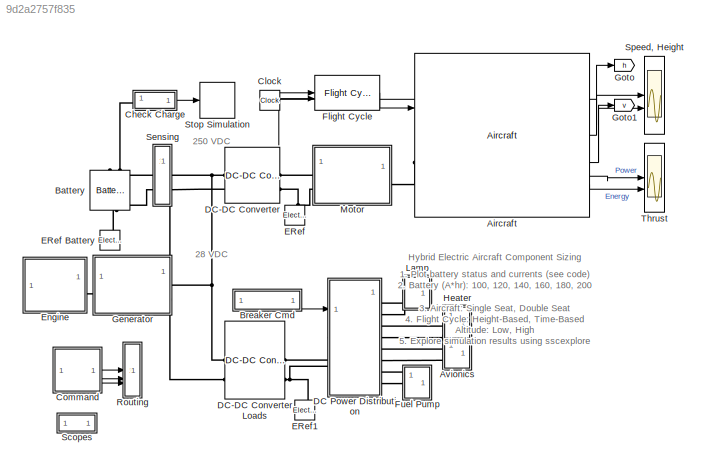
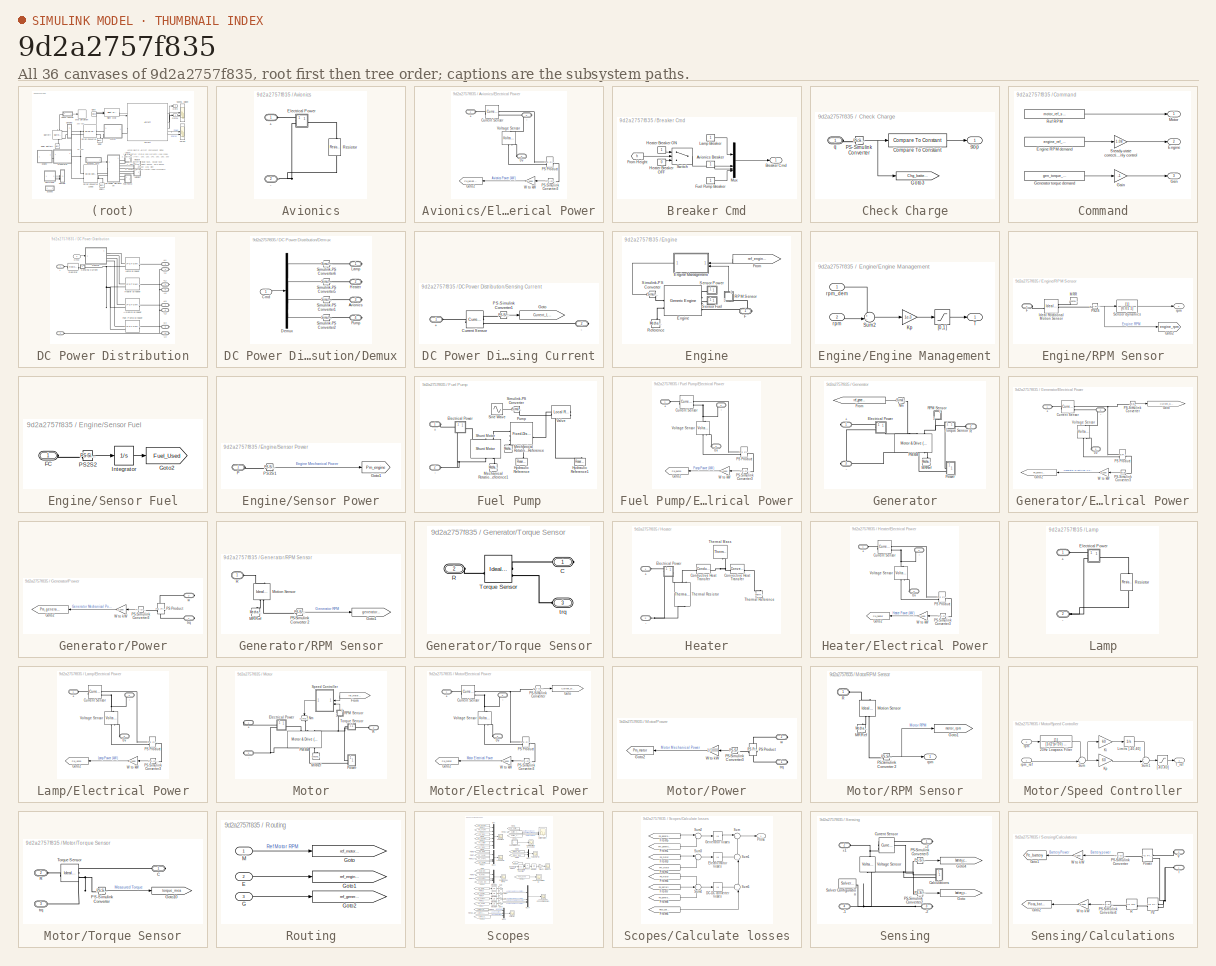
[diagram: thumbnail index - all 36 canvases of the model, root first then tree order]
MODEL slx_9d2a2757f835
KIND model
CONFIG AbsTol = 1e-3
CONFIG EnableMultiTasking = on
CONFIG PostLoadFcn = warning('off','physmod:common:gl:sli:rtp:InvalidNonValueReference')\nwarning off Simulink:Engine:SortDiscontinuityInAlgLoop
CONFIG PreLoadFcn = ssc_aircraft_elec_default_params\n
CONFIG SolverName = ode23t
CONFIG StopTime = FlightProfileLength
WORKSPACE source: MATLAB code (in-file)
WORKSPACE v0 = 0
WORKSPACE wheel_radius = 0.15
WORKSPACE k = 1e-2  (= 0.01)
WORKSPACE t_torque = 0.02
WORKSPACE rpm0 = 2000
BLOCK [Reference] Aircraft  REF=ssc_aircraft_elec_lib/Aircraft  (lib defined in slx_befc47e003b0)
  AttributesFormatString = %<popup_aircraft_type>
  SourceBlock = ssc_aircraft_elec_lib/Aircraft
  SourceType = Airframe Configuration
  Tag = PublishSubsystem
BLOCK [SubSystem] Avionics
BLOCK [PMIOPort] Avionics/+
  Side = Left
BLOCK [PMIOPort] Avionics/-
  Port = 2
  Side = Left
BLOCK [SubSystem] Avionics/Electrical Power
  NameLocation = top
BLOCK [Gain] Avionics/Electrical Power/ W to kW 
  Gain = 1/1000
BLOCK [PMIOPort] Avionics/Electrical Power/+
  Side = Left
BLOCK [PMIOPort] Avionics/Electrical Power/-
  Port = 2
  Side = Right
BLOCK [PMIOPort] Avionics/Electrical Power/0v
  Port = 3
  Side = Left
BLOCK [Reference] Avionics/Electrical Power/Current Sensor  REF=fl_lib/Electrical/Electrical Sensors/Current Sensor
  SourceBlock = fl_lib/Electrical/Electrical Sensors/Current Sensor
  SourceType = Current Sensor
BLOCK [Goto] Avionics/Electrical Power/Goto2
  GotoTag = Pe_avionics
  TagVisibility = global
BLOCK [Reference] Avionics/Electrical Power/PS Product  REF=fl_lib/Physical Signals/Functions/PS Product
  SourceBlock = fl_lib/Physical Signals/Functions/PS Product
  SourceType = PS Product
BLOCK [Reference] Avionics/Electrical Power/PS-Simulink Converter3  REF=nesl_utility/PS-Simulink
Converter
  NameLocation = top
  SourceBlock = nesl_utility/PS-Simulink\nConverter
  SourceType = PS-Simulink\nConverter
BLOCK [Reference] Avionics/Electrical Power/Voltage Sensor  REF=fl_lib/Electrical/Electrical Sensors/Voltage Sensor
  NameLocation = right
  SourceBlock = fl_lib/Electrical/Electrical Sensors/Voltage Sensor
  SourceType = Voltage Sensor
BLOCK [Reference] Avionics/Resistor  REF=fl_lib/Electrical/Electrical Elements/Resistor
  NameLocation = left
  SourceBlock = fl_lib/Electrical/Electrical Elements/Resistor
  SourceType = Resistor
BLOCK [Reference] Battery  REF=batteryecm_lib/Battery
  NameLocation = left
  SourceBlock = batteryecm_lib/Battery
  SourceType = Battery
BLOCK [SubSystem] Breaker Cmd
BLOCK [Constant] Breaker Cmd/Avionics Breaker
BLOCK [Outport] Breaker Cmd/Breaker Cmd
  VectorParamsAs1DForOutWhenUnconnected = off
BLOCK [From] Breaker Cmd/From Height
  GotoTag = h
  TagVisibility = global
BLOCK [Constant] Breaker Cmd/Fuel Pump Breaker
BLOCK [Constant] Breaker Cmd/Heater Breaker OFF
  Value = 0
BLOCK [Constant] Breaker Cmd/Heater Breaker ON
  NameLocation = top
BLOCK [Constant] Breaker Cmd/Lamp Breaker
BLOCK [Mux] Breaker Cmd/Mux
  DisplayOption = bar
BLOCK [Switch] Breaker Cmd/Switch
  InputSameDT = off
  SaturateOnIntegerOverflow = off
  Threshold = 800
BLOCK [SubSystem] Check Charge
BLOCK [Reference] Check Charge/Compare To Constant  REF=simulink/Logic and Bit
Operations/Compare
To Constant
  SourceBlock = simulink/Logic and Bit\nOperations/Compare\nTo Constant
  SourceType = Compare To Constant
BLOCK [Goto] Check Charge/Goto3
  GotoTag = Chg_battery
  TagVisibility = global
BLOCK [Reference] Check Charge/PS-Simulink Converter  REF=nesl_utility/PS-Simulink
Converter
  SourceBlock = nesl_utility/PS-Simulink\nConverter
  SourceType = PS-Simulink\nConverter
BLOCK [PMIOPort] Check Charge/q
  Side = Left
BLOCK [Outport] Check Charge/stop
  VectorParamsAs1DForOutWhenUnconnected = off
BLOCK [Clock] Clock
BLOCK [SubSystem] Command
BLOCK [Outport] Command/Engine
  Port = 2
  VectorParamsAs1DForOutWhenUnconnected = off
BLOCK [Constant] Command/Engine RPM demand
  Value = engine_ref_speed
BLOCK [Gain] Command/Gain
  Gain = -1
BLOCK [Outport] Command/Gen
  Port = 3
  VectorParamsAs1DForOutWhenUnconnected = off
BLOCK [Constant] Command/Generator torque demand
  Value = gen_torque_demand
BLOCK [Outport] Command/Motor
  VectorParamsAs1DForOutWhenUnconnected = off
BLOCK [Constant] Command/Ref RPM
  Value = motor_ref_speed
BLOCK [Gain] Command/Steady-state correction factor as proportional-only control
  Gain = 1.08
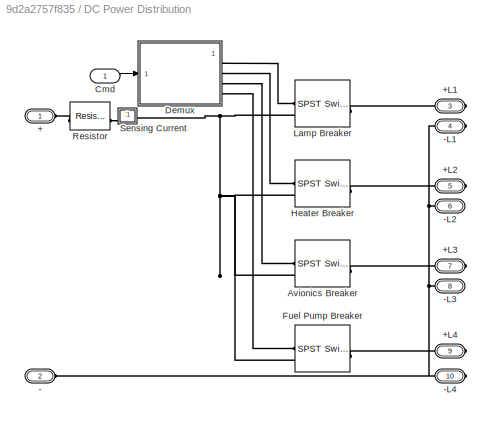
BLOCK [SubSystem] DC Power Distribution
  Tag = PublishSubsystem
BLOCK [PMIOPort] DC Power Distribution/+
  Side = Left
BLOCK [PMIOPort] DC Power Distribution/+L1
  NameLocation = top
  Port = 3
  Side = Right
BLOCK [PMIOPort] DC Power Distribution/+L2
  NameLocation = top
  Port = 5
  Side = Right
BLOCK [PMIOPort] DC Power Distribution/+L3
  NameLocation = top
  Port = 7
  Side = Right
BLOCK [PMIOPort] DC Power Distribution/+L4
  NameLocation = top
  Port = 9
  Side = Right
BLOCK [PMIOPort] DC Power Distribution/-
  Port = 2
  Side = Left
BLOCK [PMIOPort] DC Power Distribution/-L1
  Port = 4
  Side = Right
BLOCK [PMIOPort] DC Power Distribution/-L2
  Port = 6
  Side = Right
BLOCK [PMIOPort] DC Power Distribution/-L3
  Port = 8
  Side = Right
BLOCK [PMIOPort] DC Power Distribution/-L4
  Port = 10
  Side = Right
BLOCK [Reference] DC Power Distribution/Avionics Breaker  REF=ee_lib/Switches & Breakers/SPST Switch
  NameLocation = top
  SourceBlock = ee_lib/Switches & Breakers/SPST Switch
  SourceType = SPST Switch
BLOCK [Inport] DC Power Distribution/Cmd
BLOCK [SubSystem] DC Power Distribution/Demux
BLOCK [PMIOPort] DC Power Distribution/Demux/Avionics
  Port = 3
  Side = Right
BLOCK [Inport] DC Power Distribution/Demux/Cmd
BLOCK [Demux] DC Power Distribution/Demux/Demux
BLOCK [PMIOPort] DC Power Distribution/Demux/Heater
  Port = 2
  Side = Right
BLOCK [PMIOPort] DC Power Distribution/Demux/Lamp
  Side = Right
BLOCK [PMIOPort] DC Power Distribution/Demux/Pump
  Port = 4
  Side = Right
BLOCK [Reference] DC Power Distribution/Demux/Simulink-PS Converter1  REF=nesl_utility/Simulink-PS
Converter
  NameLocation = top
  SourceBlock = nesl_utility/Simulink-PS\nConverter
  SourceType = Simulink-PS\nConverter
BLOCK [Reference] DC Power Distribution/Demux/Simulink-PS Converter2  REF=nesl_utility/Simulink-PS
Converter
  NameLocation = top
  SourceBlock = nesl_utility/Simulink-PS\nConverter
  SourceType = Simulink-PS\nConverter
BLOCK [Reference] DC Power Distribution/Demux/Simulink-PS Converter5  REF=nesl_utility/Simulink-PS
Converter
  NameLocation = top
  SourceBlock = nesl_utility/Simulink-PS\nConverter
  SourceType = Simulink-PS\nConverter
BLOCK [Reference] DC Power Distribution/Demux/Simulink-PS Converter6  REF=nesl_utility/Simulink-PS
Converter
  NameLocation = top
  SourceBlock = nesl_utility/Simulink-PS\nConverter
  SourceType = Simulink-PS\nConverter
BLOCK [Reference] DC Power Distribution/Fuel Pump Breaker  REF=ee_lib/Switches & Breakers/SPST Switch
  NameLocation = top
  SourceBlock = ee_lib/Switches & Breakers/SPST Switch
  SourceType = SPST Switch
BLOCK [Reference] DC Power Distribution/Heater Breaker  REF=ee_lib/Switches & Breakers/SPST Switch
  NameLocation = top
  SourceBlock = ee_lib/Switches & Breakers/SPST Switch
  SourceType = SPST Switch
BLOCK [Reference] DC Power Distribution/Lamp Breaker  REF=ee_lib/Switches & Breakers/SPST Switch
  NameLocation = top
  SourceBlock = ee_lib/Switches & Breakers/SPST Switch
  SourceType = SPST Switch
BLOCK [Reference] DC Power Distribution/Resistor  REF=fl_lib/Electrical/Electrical Elements/Resistor
  SourceBlock = fl_lib/Electrical/Electrical Elements/Resistor
  SourceType = Resistor
BLOCK [SubSystem] DC Power Distribution/Sensing Current
BLOCK [PMIOPort] DC Power Distribution/Sensing Current/+
  Side = Left
BLOCK [PMIOPort] DC Power Distribution/Sensing Current/-
  Port = 2
  Side = Right
BLOCK [Reference] DC Power Distribution/Sensing Current/Current Sensor  REF=fl_lib/Electrical/Electrical Sensors/Current Sensor
  SourceBlock = fl_lib/Electrical/Electrical Sensors/Current Sensor
  SourceType = Current Sensor
BLOCK [Goto] DC Power Distribution/Sensing Current/Goto
  GotoTag = Current_Loads
  TagVisibility = global
BLOCK [Reference] DC Power Distribution/Sensing Current/PS-Simulink Converter1  REF=nesl_utility/PS-Simulink
Converter
  SourceBlock = nesl_utility/PS-Simulink\nConverter
  SourceType = PS-Simulink\nConverter
BLOCK [Reference] DC-DC Converter  REF=ee_lib/Semiconductors &
Converters/Converters/DC-DC Converter
  SourceBlock = ee_lib/Semiconductors &\nConverters/Converters/DC-DC Converter
  SourceType = DC-DC Converter
BLOCK [Reference] DC-DC Converter Loads  REF=ee_lib/Semiconductors &
Converters/Converters/DC-DC Converter
  SourceBlock = ee_lib/Semiconductors &\nConverters/Converters/DC-DC Converter
  SourceType = DC-DC Converter
BLOCK [Reference] ERef  REF=fl_lib/Electrical/Electrical Elements/Electrical Reference
  NameLocation = right
  SourceBlock = fl_lib/Electrical/Electrical Elements/Electrical Reference
  SourceType = Electrical Reference
BLOCK [Reference] ERef Battery  REF=fl_lib/Electrical/Electrical Elements/Electrical Reference
  NameLocation = left
  SourceBlock = fl_lib/Electrical/Electrical Elements/Electrical Reference
  SourceType = Electrical Reference
BLOCK [Reference] ERef1  REF=fl_lib/Electrical/Electrical Elements/Electrical Reference
  NameLocation = right
  SourceBlock = fl_lib/Electrical/Electrical Elements/Electrical Reference
  SourceType = Electrical Reference
BLOCK [SubSystem] Engine
BLOCK [Reference] Engine/Engine  REF=sdl_lib/Engines & Motors/Generic Engine
  SourceBlock = sdl_lib/Engines & Motors/Generic Engine
  SourceType = Generic Engine
BLOCK [SubSystem] Engine/Engine Management
BLOCK [Gain] Engine/Engine Management/Kp
  Gain = 1e-3
  OutDataTypeStr = Inherit: Same as input
  ParamDataTypeStr = Inherit: Same as input
  SaturateOnIntegerOverflow = on
BLOCK [Sum] Engine/Engine Management/Sum2
  InputSameDT = on
  Inputs = +-|
  OutDataTypeStr = Inherit: Same as first input
  SaturateOnIntegerOverflow = on
BLOCK [Outport] Engine/Engine Management/T
  VectorParamsAs1DForOutWhenUnconnected = off
BLOCK [Saturate] Engine/Engine Management/[0,1]
  LowerLimit = 0
  UpperLimit = 1
BLOCK [Inport] Engine/Engine Management/rpm
  Port = 2
BLOCK [Inport] Engine/Engine Management/rpm_dem
BLOCK [PMIOPort] Engine/F
  Side = Right
BLOCK [From] Engine/From
  GotoTag = ref_engine_speed
  NameLocation = top
  TagVisibility = global
BLOCK [SubSystem] Engine/RPM Sensor
  NameLocation = right
BLOCK [PMIOPort] Engine/RPM Sensor/F
  Side = Left
BLOCK [Goto] Engine/RPM Sensor/Goto2
  GotoTag = engine_rpm
  NameLocation = top
  TagVisibility = global
BLOCK [Reference] Engine/RPM Sensor/Ideal Rotational Motion Sensor  REF=fl_lib/Mechanical/Mechanical Sensors/Ideal Rotational
Motion Sensor
  SourceBlock = fl_lib/Mechanical/Mechanical Sensors/Ideal Rotational\nMotion Sensor
  SourceType = Ideal Rotational\nMotion Sensor
BLOCK [Reference] Engine/RPM Sensor/MRR  REF=fl_lib/Mechanical/Rotational Elements/Mechanical
Rotational Reference
  NameLocation = top
  SourceBlock = fl_lib/Mechanical/Rotational Elements/Mechanical\nRotational Reference
  SourceType = Mechanical\nRotational Reference
BLOCK [Reference] Engine/RPM Sensor/PS2S  REF=nesl_utility/PS-Simulink
Converter
  SourceBlock = nesl_utility/PS-Simulink\nConverter
  SourceType = PS-Simulink\nConverter
BLOCK [TransferFcn] Engine/RPM Sensor/Sensor dynamics
  Denominator = [0.01 1]
BLOCK [Outport] Engine/RPM Sensor/rpm
  VectorParamsAs1DForOutWhenUnconnected = off
BLOCK [Reference] Engine/Reference  REF=fl_lib/Mechanical/Rotational Elements/Mechanical
Rotational Reference
  NameLocation = right
  SourceBlock = fl_lib/Mechanical/Rotational Elements/Mechanical\nRotational Reference
  SourceType = Mechanical\nRotational Reference
BLOCK [SubSystem] Engine/Sensor Fuel
BLOCK [PMIOPort] Engine/Sensor Fuel/FC
  Side = Left
BLOCK [Goto] Engine/Sensor Fuel/Goto2
  GotoTag = Fuel_Used
  NameLocation = top
  TagVisibility = global
BLOCK [Integrator] Engine/Sensor Fuel/Integrator
BLOCK [Reference] Engine/Sensor Fuel/PS2S2  REF=nesl_utility/PS-Simulink
Converter
  SourceBlock = nesl_utility/PS-Simulink\nConverter
  SourceType = PS-Simulink\nConverter
BLOCK [SubSystem] Engine/Sensor Power
  NameLocation = top
BLOCK [Goto] Engine/Sensor Power/Goto1
  GotoTag = Pm_engine
  NameLocation = top
  TagVisibility = global
BLOCK [PMIOPort] Engine/Sensor Power/P
  Side = Left
BLOCK [Reference] Engine/Sensor Power/PS2S1  REF=nesl_utility/PS-Simulink
Converter
  SourceBlock = nesl_utility/PS-Simulink\nConverter
  SourceType = PS-Simulink\nConverter
BLOCK [Reference] Engine/Simulink-PS Converter  REF=nesl_utility/Simulink-PS
Converter
  SourceBlock = nesl_utility/Simulink-PS\nConverter
  SourceType = Simulink-PS\nConverter
BLOCK [Reference] Flight Cycle  REF=ssc_aircraft_elec_lib/Flight Cycle  (lib defined in slx_befc47e003b0)
  AttributesFormatString = %<ActiveVariant>
  SourceBlock = ssc_aircraft_elec_lib/Flight Cycle
BLOCK [SubSystem] Fuel Pump
  Tag = PublishSubsystem
BLOCK [PMIOPort] Fuel Pump/+
  Side = Left
BLOCK [PMIOPort] Fuel Pump/-
  Port = 2
  Side = Left
BLOCK [SubSystem] Fuel Pump/Electrical Power
  NameLocation = top
BLOCK [Gain] Fuel Pump/Electrical Power/ W to kW 
  Gain = 1/1000
BLOCK [PMIOPort] Fuel Pump/Electrical Power/+
  Side = Left
BLOCK [PMIOPort] Fuel Pump/Electrical Power/-
  Port = 2
  Side = Right
BLOCK [PMIOPort] Fuel Pump/Electrical Power/0v
  Port = 3
  Side = Left
BLOCK [Reference] Fuel Pump/Electrical Power/Current Sensor  REF=fl_lib/Electrical/Electrical Sensors/Current Sensor
  SourceBlock = fl_lib/Electrical/Electrical Sensors/Current Sensor
  SourceType = Current Sensor
BLOCK [Goto] Fuel Pump/Electrical Power/Goto2
  GotoTag = Pe_pump
  TagVisibility = global
BLOCK [Reference] Fuel Pump/Electrical Power/PS Product  REF=fl_lib/Physical Signals/Functions/PS Product
  SourceBlock = fl_lib/Physical Signals/Functions/PS Product
  SourceType = PS Product
BLOCK [Reference] Fuel Pump/Electrical Power/PS-Simulink Converter3  REF=nesl_utility/PS-Simulink
Converter
  NameLocation = top
  SourceBlock = nesl_utility/PS-Simulink\nConverter
  SourceType = PS-Simulink\nConverter
BLOCK [Reference] Fuel Pump/Electrical Power/Voltage Sensor  REF=fl_lib/Electrical/Electrical Sensors/Voltage Sensor
  NameLocation = right
  SourceBlock = fl_lib/Electrical/Electrical Sensors/Voltage Sensor
  SourceType = Voltage Sensor
BLOCK [Reference] Fuel Pump/Hydraulic Reference  REF=fl_lib/Isothermal Liquid/Elements/Reservoir (IL)
  NameLocation = left
  SourceBlock = fl_lib/Isothermal Liquid/Elements/Reservoir (IL)
  SourceType = Reservoir (IL)
BLOCK [Reference] Fuel Pump/Hydraulic Reference1  REF=fl_lib/Isothermal Liquid/Elements/Reservoir (IL)
  NameLocation = right
  SourceBlock = fl_lib/Isothermal Liquid/Elements/Reservoir (IL)
  SourceType = Reservoir (IL)
BLOCK [Reference] Fuel Pump/Mechanical Rotational Reference  REF=fl_lib/Mechanical/Rotational Elements/Mechanical
Rotational Reference
  NameLocation = right
  SourceBlock = fl_lib/Mechanical/Rotational Elements/Mechanical\nRotational Reference
  SourceType = Mechanical\nRotational Reference
BLOCK [Reference] Fuel Pump/Mechanical Rotational Reference1  REF=fl_lib/Mechanical/Rotational Elements/Mechanical
Rotational Reference
  NameLocation = right
  SourceBlock = fl_lib/Mechanical/Rotational Elements/Mechanical\nRotational Reference
  SourceType = Mechanical\nRotational Reference
BLOCK [Reference] Fuel Pump/Pump  REF=SimscapeFluids_lib/Isothermal Liquid/Pumps & Motors/Fixed-Displacement
Pump (IL)
  LibrarySourceBlock = SimscapeFluids_lib/Isothermal Liquid/Pumps & Motors/Fixed-Displacement Pump (IL)
  NameLocation = right
  SourceBlock = SimscapeFluids_lib/Isothermal Liquid/Pumps & Motors/Fixed-Displacement\nPump (IL)
  SourceType = Fixed-Displacement\nPump (IL)
BLOCK [Reference] Fuel Pump/Shunt Motor  REF=ee_lib/Electromechanical/Brushed Motors/Shunt Motor
  NameLocation = left
  SourceBlock = ee_lib/Electromechanical/Brushed Motors/Shunt Motor
  SourceType = Shunt Motor
BLOCK [Reference] Fuel Pump/Simulink-PS Converter  REF=nesl_utility/Simulink-PS
Converter
  SourceBlock = nesl_utility/Simulink-PS\nConverter
  SourceType = Simulink-PS\nConverter
BLOCK [Sin] Fuel Pump/Sine Wave
  Amplitude = 1e-4
  Bias = 1e-3
  Frequency = 2
  SampleTime = 0
BLOCK [Reference] Fuel Pump/Valve  REF=fl_lib/Isothermal Liquid/Elements/Local Restriction
(IL)
  LibrarySourceBlock = fl_lib/Isothermal Liquid/Elements/Local Restriction (IL)
  SourceBlock = fl_lib/Isothermal Liquid/Elements/Local Restriction\n(IL)
  SourceType = Local Restriction\n(IL)
BLOCK [SubSystem] Generator
  Tag = PublishSubsystem
BLOCK [PMIOPort] Generator/+
  Side = Right
BLOCK [PMIOPort] Generator/-
  Port = 3
  Side = Right
BLOCK [SubSystem] Generator/Electrical Power
  NameLocation = top
BLOCK [Gain] Generator/Electrical Power/ W to kW 
  Gain = 1/1000
BLOCK [PMIOPort] Generator/Electrical Power/+
  Side = Left
BLOCK [PMIOPort] Generator/Electrical Power/-
  Port = 2
  Side = Right
BLOCK [PMIOPort] Generator/Electrical Power/0v
  Port = 3
  Side = Left
BLOCK [Reference] Generator/Electrical Power/Current Sensor  REF=fl_lib/Electrical/Electrical Sensors/Current Sensor
  SourceBlock = fl_lib/Electrical/Electrical Sensors/Current Sensor
  SourceType = Current Sensor
BLOCK [Goto] Generator/Electrical Power/Goto
  GotoTag = Current_Generator
  TagVisibility = global
BLOCK [Goto] Generator/Electrical Power/Goto2
  GotoTag = Pe_generator
  TagVisibility = global
BLOCK [Reference] Generator/Electrical Power/PS Product  REF=fl_lib/Physical Signals/Functions/PS Product
  SourceBlock = fl_lib/Physical Signals/Functions/PS Product
  SourceType = PS Product
BLOCK [Reference] Generator/Electrical Power/PS-Simulink Converter  REF=nesl_utility/PS-Simulink
Converter
  SourceBlock = nesl_utility/PS-Simulink\nConverter
  SourceType = PS-Simulink\nConverter
BLOCK [Reference] Generator/Electrical Power/PS-Simulink Converter3  REF=nesl_utility/PS-Simulink
Converter
  NameLocation = top
  SourceBlock = nesl_utility/PS-Simulink\nConverter
  SourceType = PS-Simulink\nConverter
BLOCK [Reference] Generator/Electrical Power/Voltage Sensor  REF=fl_lib/Electrical/Electrical Sensors/Voltage Sensor
  NameLocation = right
  SourceBlock = fl_lib/Electrical/Electrical Sensors/Voltage Sensor
  SourceType = Voltage Sensor
BLOCK [From] Generator/From
  GotoTag = ref_generator_torque
  TagVisibility = global
BLOCK [Reference] Generator/MRRef  REF=fl_lib/Mechanical/Rotational Elements/Mechanical
Rotational Reference
  NameLocation = right
  SourceBlock = fl_lib/Mechanical/Rotational Elements/Mechanical\nRotational Reference
  SourceType = Mechanical\nRotational Reference
BLOCK [Reference] Generator/Nm  REF=nesl_utility/Simulink-PS
Converter
  SourceBlock = nesl_utility/Simulink-PS\nConverter
  SourceType = Simulink-PS\nConverter
BLOCK [Reference] Generator/PMSM  REF=ee_lib/Electromechanical/Motor & Drive
(System Level)
  NameLocation = left
  SourceBlock = ee_lib/Electromechanical/Motor & Drive\n(System Level)
  SourceType = Motor & Drive\n(System Level)
BLOCK [SubSystem] Generator/Power
  NameLocation = top
BLOCK [Gain] Generator/Power/ W to kW 
  Gain = 1/1000
BLOCK [Goto] Generator/Power/Goto2
  GotoTag = Pm_generator
  TagVisibility = global
BLOCK [Reference] Generator/Power/PS Product  REF=fl_lib/Physical Signals/Functions/PS Product
  SourceBlock = fl_lib/Physical Signals/Functions/PS Product
  SourceType = PS Product
BLOCK [Reference] Generator/Power/PS-Simulink Converter3  REF=nesl_utility/PS-Simulink
Converter
  NameLocation = top
  SourceBlock = nesl_utility/PS-Simulink\nConverter
  SourceType = PS-Simulink\nConverter
BLOCK [PMIOPort] Generator/Power/trq
  Side = Right
BLOCK [PMIOPort] Generator/Power/w
  Port = 2
  Side = Right
BLOCK [PMIOPort] Generator/R
  Port = 2
  Side = Left
BLOCK [SubSystem] Generator/RPM Sensor
  NameLocation = left
BLOCK [Goto] Generator/RPM Sensor/Goto1
  GotoTag = generator_rpm
  NameLocation = top
  TagVisibility = global
BLOCK [Reference] Generator/RPM Sensor/MRRef  REF=fl_lib/Mechanical/Rotational Elements/Mechanical
Rotational Reference
  NameLocation = left
  SourceBlock = fl_lib/Mechanical/Rotational Elements/Mechanical\nRotational Reference
  SourceType = Mechanical\nRotational Reference
BLOCK [Reference] Generator/RPM Sensor/Motion Sensor  REF=fl_lib/Mechanical/Mechanical Sensors/Ideal Rotational
Motion Sensor
  NameLocation = right
  SourceBlock = fl_lib/Mechanical/Mechanical Sensors/Ideal Rotational\nMotion Sensor
  SourceType = Ideal Rotational\nMotion Sensor
BLOCK [Reference] Generator/RPM Sensor/PS-Simulink Converter 2  REF=nesl_utility/PS-Simulink
Converter
  SourceBlock = nesl_utility/PS-Simulink\nConverter
  SourceType = PS-Simulink\nConverter
BLOCK [PMIOPort] Generator/RPM Sensor/R
  Side = Left
BLOCK [SubSystem] Generator/Torque Sensor
BLOCK [PMIOPort] Generator/Torque Sensor/C
  Side = Right
BLOCK [PMIOPort] Generator/Torque Sensor/R
  Port = 2
  Side = Left
BLOCK [Reference] Generator/Torque Sensor/Torque Sensor  REF=fl_lib/Mechanical/Mechanical Sensors/Ideal Torque Sensor
  SourceBlock = fl_lib/Mechanical/Mechanical Sensors/Ideal Torque Sensor
  SourceType = Ideal Torque Sensor
BLOCK [PMIOPort] Generator/Torque Sensor/trq
  Port = 3
  Side = Left
BLOCK [Goto] Goto
  GotoTag = h
  TagVisibility = global
BLOCK [Goto] Goto1
  GotoTag = v
  TagVisibility = global
BLOCK [SubSystem] Heater
  NameLocation = top
BLOCK [PMIOPort] Heater/+
  Side = Left
BLOCK [PMIOPort] Heater/-
  Port = 2
  Side = Left
BLOCK [Reference] Heater/Conductive Heat Transfer  REF=fl_lib/Thermal/Thermal Elements/Conductive Heat
Transfer
  SourceBlock = fl_lib/Thermal/Thermal Elements/Conductive Heat\nTransfer
  SourceType = Conductive Heat\nTransfer
BLOCK [Reference] Heater/Convective Heat Transfer  REF=fl_lib/Thermal/Thermal Elements/Convective Heat
Transfer
  SourceBlock = fl_lib/Thermal/Thermal Elements/Convective Heat\nTransfer
  SourceType = Convective Heat\nTransfer
BLOCK [SubSystem] Heater/Electrical Power
  NameLocation = top
BLOCK [Gain] Heater/Electrical Power/ W to kW 
  Gain = 1/1000
BLOCK [PMIOPort] Heater/Electrical Power/+
  Side = Left
BLOCK [PMIOPort] Heater/Electrical Power/-
  Port = 2
  Side = Right
BLOCK [PMIOPort] Heater/Electrical Power/0v
  Port = 3
  Side = Left
BLOCK [Reference] Heater/Electrical Power/Current Sensor  REF=fl_lib/Electrical/Electrical Sensors/Current Sensor
  SourceBlock = fl_lib/Electrical/Electrical Sensors/Current Sensor
  SourceType = Current Sensor
BLOCK [Goto] Heater/Electrical Power/Goto2
  GotoTag = Pe_heater
  TagVisibility = global
BLOCK [Reference] Heater/Electrical Power/PS Product  REF=fl_lib/Physical Signals/Functions/PS Product
  SourceBlock = fl_lib/Physical Signals/Functions/PS Product
  SourceType = PS Product
BLOCK [Reference] Heater/Electrical Power/PS-Simulink Converter3  REF=nesl_utility/PS-Simulink
Converter
  NameLocation = top
  SourceBlock = nesl_utility/PS-Simulink\nConverter
  SourceType = PS-Simulink\nConverter
BLOCK [Reference] Heater/Electrical Power/Voltage Sensor  REF=fl_lib/Electrical/Electrical Sensors/Voltage Sensor
  NameLocation = right
  SourceBlock = fl_lib/Electrical/Electrical Sensors/Voltage Sensor
  SourceType = Voltage Sensor
BLOCK [Reference] Heater/Thermal Mass  REF=fl_lib/Thermal/Thermal Elements/Thermal Mass
  NameLocation = left
  SourceBlock = fl_lib/Thermal/Thermal Elements/Thermal Mass
  SourceType = Thermal Mass
BLOCK [Reference] Heater/Thermal Reference  REF=fl_lib/Thermal/Thermal Elements/Thermal Reference
  NameLocation = right
  SourceBlock = fl_lib/Thermal/Thermal Elements/Thermal Reference
  SourceType = Thermal Reference
BLOCK [Reference] Heater/Thermal Resistor  REF=fl_lib/Electrical/Electrical Elements/Thermal Resistor
  NameLocation = right
  SourceBlock = fl_lib/Electrical/Electrical Elements/Thermal Resistor
  SourceType = Thermal Resistor
BLOCK [SubSystem] Lamp
  NameLocation = top
BLOCK [PMIOPort] Lamp/+
  Side = Left
BLOCK [PMIOPort] Lamp/-
  Port = 2
  Side = Left
BLOCK [SubSystem] Lamp/Electrical Power
BLOCK [Gain] Lamp/Electrical Power/ W to kW 
  Gain = 1/1000
BLOCK [PMIOPort] Lamp/Electrical Power/+
  Side = Left
BLOCK [PMIOPort] Lamp/Electrical Power/-
  Port = 2
  Side = Right
BLOCK [PMIOPort] Lamp/Electrical Power/0v
  Port = 3
  Side = Left
BLOCK [Reference] Lamp/Electrical Power/Current Sensor  REF=fl_lib/Electrical/Electrical Sensors/Current Sensor
  SourceBlock = fl_lib/Electrical/Electrical Sensors/Current Sensor
  SourceType = Current Sensor
BLOCK [Goto] Lamp/Electrical Power/Goto2
  GotoTag = Pe_lamp
  TagVisibility = global
BLOCK [Reference] Lamp/Electrical Power/PS Product  REF=fl_lib/Physical Signals/Functions/PS Product
  SourceBlock = fl_lib/Physical Signals/Functions/PS Product
  SourceType = PS Product
BLOCK [Reference] Lamp/Electrical Power/PS-Simulink Converter3  REF=nesl_utility/PS-Simulink
Converter
  NameLocation = top
  SourceBlock = nesl_utility/PS-Simulink\nConverter
  SourceType = PS-Simulink\nConverter
BLOCK [Reference] Lamp/Electrical Power/Voltage Sensor  REF=fl_lib/Electrical/Electrical Sensors/Voltage Sensor
  NameLocation = right
  SourceBlock = fl_lib/Electrical/Electrical Sensors/Voltage Sensor
  SourceType = Voltage Sensor
BLOCK [Reference] Lamp/Resistor  REF=fl_lib/Electrical/Electrical Elements/Resistor
  NameLocation = left
  SourceBlock = fl_lib/Electrical/Electrical Elements/Resistor
  SourceType = Resistor
BLOCK [SubSystem] Motor
  Tag = PublishSubsystem
BLOCK [PMIOPort] Motor/+
  NameLocation = top
  Side = Right
BLOCK [PMIOPort] Motor/-
  Port = 3
  Side = Right
BLOCK [SubSystem] Motor/Electrical Power
  NameLocation = top
BLOCK [Gain] Motor/Electrical Power/ W to kW 
  Gain = 1/1000
BLOCK [PMIOPort] Motor/Electrical Power/+
  Side = Left
BLOCK [PMIOPort] Motor/Electrical Power/-
  Port = 2
  Side = Right
BLOCK [PMIOPort] Motor/Electrical Power/0v
  Port = 3
  Side = Left
BLOCK [Reference] Motor/Electrical Power/Current Sensor  REF=fl_lib/Electrical/Electrical Sensors/Current Sensor
  SourceBlock = fl_lib/Electrical/Electrical Sensors/Current Sensor
  SourceType = Current Sensor
BLOCK [Goto] Motor/Electrical Power/Goto
  GotoTag = Current_Motor
  TagVisibility = global
BLOCK [Goto] Motor/Electrical Power/Goto2
  GotoTag = Pe_motor
  TagVisibility = global
BLOCK [Reference] Motor/Electrical Power/PS Product  REF=fl_lib/Physical Signals/Functions/PS Product
  SourceBlock = fl_lib/Physical Signals/Functions/PS Product
  SourceType = PS Product
BLOCK [Reference] Motor/Electrical Power/PS-Simulink Converter  REF=nesl_utility/PS-Simulink
Converter
  SourceBlock = nesl_utility/PS-Simulink\nConverter
  SourceType = PS-Simulink\nConverter
BLOCK [Reference] Motor/Electrical Power/PS-Simulink Converter3  REF=nesl_utility/PS-Simulink
Converter
  NameLocation = top
  SourceBlock = nesl_utility/PS-Simulink\nConverter
  SourceType = PS-Simulink\nConverter
BLOCK [Reference] Motor/Electrical Power/Voltage Sensor  REF=fl_lib/Electrical/Electrical Sensors/Voltage Sensor
  NameLocation = right
  SourceBlock = fl_lib/Electrical/Electrical Sensors/Voltage Sensor
  SourceType = Voltage Sensor
BLOCK [From] Motor/From
  GotoTag = ref_motor_rpm
  TagVisibility = global
BLOCK [Reference] Motor/MRRef  REF=fl_lib/Mechanical/Rotational Elements/Mechanical
Rotational Reference
  NameLocation = right
  SourceBlock = fl_lib/Mechanical/Rotational Elements/Mechanical\nRotational Reference
  SourceType = Mechanical\nRotational Reference
BLOCK [Reference] Motor/Nm  REF=nesl_utility/Simulink-PS
Converter
  NameLocation = left
  SourceBlock = nesl_utility/Simulink-PS\nConverter
  SourceType = Simulink-PS\nConverter
BLOCK [Reference] Motor/PMSM  REF=ee_lib/Electromechanical/Motor & Drive
(System Level)
  NameLocation = left
  SourceBlock = ee_lib/Electromechanical/Motor & Drive\n(System Level)
  SourceType = Motor & Drive\n(System Level)
BLOCK [SubSystem] Motor/Power
  NameLocation = top
BLOCK [Gain] Motor/Power/ W to kW 
  Gain = 1/1000
BLOCK [Goto] Motor/Power/Goto2
  GotoTag = Pm_motor
  TagVisibility = global
BLOCK [Reference] Motor/Power/PS Product  REF=fl_lib/Physical Signals/Functions/PS Product
  SourceBlock = fl_lib/Physical Signals/Functions/PS Product
  SourceType = PS Product
BLOCK [Reference] Motor/Power/PS-Simulink Converter3  REF=nesl_utility/PS-Simulink
Converter
  NameLocation = top
  SourceBlock = nesl_utility/PS-Simulink\nConverter
  SourceType = PS-Simulink\nConverter
BLOCK [PMIOPort] Motor/Power/trq
  Side = Right
BLOCK [PMIOPort] Motor/Power/w
  Port = 2
  Side = Right
BLOCK [PMIOPort] Motor/R
  Port = 2
  Side = Left
BLOCK [SubSystem] Motor/RPM Sensor
  NameLocation = right
BLOCK [Goto] Motor/RPM Sensor/Goto1
  GotoTag = motor_rpm
  TagVisibility = global
BLOCK [Reference] Motor/RPM Sensor/MRRef  REF=fl_lib/Mechanical/Rotational Elements/Mechanical
Rotational Reference
  NameLocation = left
  SourceBlock = fl_lib/Mechanical/Rotational Elements/Mechanical\nRotational Reference
  SourceType = Mechanical\nRotational Reference
BLOCK [Reference] Motor/RPM Sensor/Motion Sensor  REF=fl_lib/Mechanical/Mechanical Sensors/Ideal Rotational
Motion Sensor
  NameLocation = right
  SourceBlock = fl_lib/Mechanical/Mechanical Sensors/Ideal Rotational\nMotion Sensor
  SourceType = Ideal Rotational\nMotion Sensor
BLOCK [Reference] Motor/RPM Sensor/PS-Simulink Converter 2  REF=nesl_utility/PS-Simulink
Converter
  SourceBlock = nesl_utility/PS-Simulink\nConverter
  SourceType = PS-Simulink\nConverter
BLOCK [PMIOPort] Motor/RPM Sensor/R
  Side = Left
BLOCK [Outport] Motor/RPM Sensor/rpm
  VectorParamsAs1DForOutWhenUnconnected = off
BLOCK [SubSystem] Motor/Speed Controller
BLOCK [TransferFcn] Motor/Speed Controller/20Hz Lowpass Filter
  Commented = through
  Denominator = [1/(2*pi*20) 1]
BLOCK [Gain] Motor/Speed Controller/Ki
  Gain = 60
BLOCK [Gain] Motor/Speed Controller/Kp
  Gain = 60
BLOCK [Integrator] Motor/Speed Controller/Limits [-40,40]
  LimitOutput = on
  LowerSaturationLimit = -40
  UpperSaturationLimit = 40
BLOCK [Sum] Motor/Speed Controller/Sum
  Inputs = -+|
BLOCK [Sum] Motor/Speed Controller/Sum1
  Inputs = ++|
BLOCK [Outport] Motor/Speed Controller/T_ref
  VectorParamsAs1DForOutWhenUnconnected = off
BLOCK [Saturate] Motor/Speed Controller/[-40,40]
  LowerLimit = -400
  UpperLimit = 400
BLOCK [Inport] Motor/Speed Controller/rpm
  Port = 2
BLOCK [Inport] Motor/Speed Controller/rpm_ref
BLOCK [SubSystem] Motor/Torque Sensor
BLOCK [PMIOPort] Motor/Torque Sensor/C
  Side = Right
BLOCK [Goto] Motor/Torque Sensor/Goto10
  GotoTag = torque_mea
  TagVisibility = global
BLOCK [Reference] Motor/Torque Sensor/PS-Simulink Converter  REF=nesl_utility/PS-Simulink
Converter
  SourceBlock = nesl_utility/PS-Simulink\nConverter
  SourceType = PS-Simulink\nConverter
BLOCK [PMIOPort] Motor/Torque Sensor/R
  Port = 2
  Side = Left
BLOCK [Reference] Motor/Torque Sensor/Torque Sensor  REF=fl_lib/Mechanical/Mechanical Sensors/Ideal Torque Sensor
  SourceBlock = fl_lib/Mechanical/Mechanical Sensors/Ideal Torque Sensor
  SourceType = Ideal Torque Sensor
BLOCK [PMIOPort] Motor/Torque Sensor/trq
  Port = 3
  Side = Left
BLOCK [SubSystem] Routing
BLOCK [Inport] Routing/E
  Port = 2
BLOCK [Inport] Routing/G
  Port = 3
BLOCK [Goto] Routing/Goto
  GotoTag = ref_motor_rpm
  TagVisibility = global
BLOCK [Goto] Routing/Goto1
  GotoTag = ref_engine_speed
  TagVisibility = global
BLOCK [Goto] Routing/Goto2
  GotoTag = ref_generator_torque
  TagVisibility = global
BLOCK [Inport] Routing/M
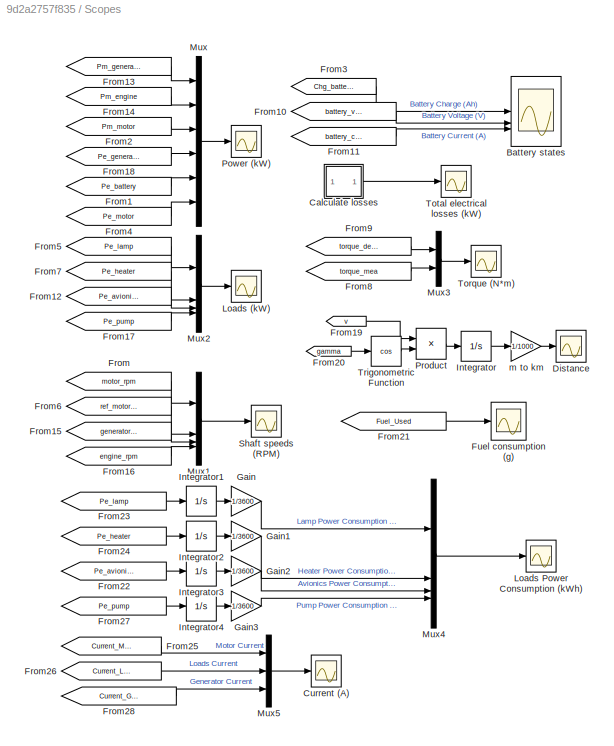
BLOCK [SubSystem] Scopes
BLOCK [Scope] Scopes/Battery states
  ActiveDisplayYMaximum = 110
  ActiveDisplayYMinimum = 10
  DataLogging = on
  DataLoggingDecimateData = on
  DataLoggingDecimation = 1
  DataLoggingSaveFormat = Structure With Time
  DataLoggingVariableName = HybridBatteryScopeData
  Floating = off
  GraphicalSettings = {"GraphicalSettings":{"LegacySettings":true,"Style":{"AxesScalingProperties":{"ScaleAxesLimitsAtStop":false},"Style":{"AxesColor":"[0 0 0]","ChannelNames":["","",""],"ColorOrder":"[1 0.909803921568627 0.392156862745098;0.149019607843137 0.549019607843137 0.866666666666667;0.96078431372549 0.466666666666667 0.16078431372549;0.286274509803922 0.858823529411765 0.250980392156863;0.752941176470588 0.3...<+575ch>
  LayoutDimensionsString = [3 1]
  MultipleDisplayCache = [{"MaxYLimMag":110,"MaxYLimReal":110,"MinYLimMag":10,"MinYLimReal":10,"PlotAsMagnitudePhase":false,"ShowGrid":true,"ShowLegend":false,"Title":"%<SignalLabel>","YLabel":""},{"MaxYLimMag":161.12532,"MaxYLimReal":213.26832,"MinYLimMag":0,"MinYLimReal":96.19742,"PlotAsMagnitudePhase":false,"ShowGrid":true,"ShowLegend":false,"Title":"%<SignalLabel>","YLabel":""},{"MaxYLimMag":161.12532,"MaxYLimReal":19...<+149ch>
  NumInputPorts = 3
  ScopeFrameLocation = window
  WasSavedAsWebScope = on
  WindowPosition = [816.000000,358.000000,560.000000,420.000000,]
BLOCK [SubSystem] Scopes/Calculate losses
BLOCK [Abs] Scopes/Calculate losses/ Electric motor losses
BLOCK [Abs] Scopes/Calculate losses/DC-DC converter losses
BLOCK [From] Scopes/Calculate losses/From1
  GotoTag = Pm_generator
  TagVisibility = global
BLOCK [From] Scopes/Calculate losses/From2
  GotoTag = Pm_motor
  TagVisibility = global
BLOCK [From] Scopes/Calculate losses/From3
  GotoTag = Pe_motor
  TagVisibility = global
BLOCK [From] Scopes/Calculate losses/From4
  GotoTag = Pe_motor
  TagVisibility = global
BLOCK [From] Scopes/Calculate losses/From5
  GotoTag = Pe_generator
  TagVisibility = global
BLOCK [From] Scopes/Calculate losses/From6
  GotoTag = Ploss_battery
  TagVisibility = global
BLOCK [From] Scopes/Calculate losses/From7
  GotoTag = Pe_battery
  TagVisibility = global
BLOCK [From] Scopes/Calculate losses/From8
  GotoTag = Pe_generator
  TagVisibility = global
BLOCK [Abs] Scopes/Calculate losses/Generator losses
BLOCK [Outport] Scopes/Calculate losses/Ploss
  VectorParamsAs1DForOutWhenUnconnected = off
BLOCK [Sum] Scopes/Calculate losses/Sum
  Inputs = |++
BLOCK [Sum] Scopes/Calculate losses/Sum1
  Inputs = ++|
  NameLocation = right
BLOCK [Sum] Scopes/Calculate losses/Sum2
  Inputs = |+-
BLOCK [Sum] Scopes/Calculate losses/Sum3
  Inputs = |+-
BLOCK [Sum] Scopes/Calculate losses/Sum4
  Inputs = -+-
BLOCK [Sum] Scopes/Calculate losses/Sum5
  Inputs = ++|
  NameLocation = right
BLOCK [Scope] Scopes/Current (A)
  ActiveDisplayYMaximum = 160.64128
  ActiveDisplayYMinimum = -113.26291
  DataLogging = on
  DataLoggingDecimateData = on
  DataLoggingDecimation = 1
  DataLoggingMaxPoints = 50000
  DataLoggingSaveFormat = Structure With Time
  DataLoggingVariableName = HybridCurrentData
  Floating = off
  GraphicalSettings = {"GraphicalSettings":{"LegacySettings":true,"Style":{"AxesScalingProperties":{"ScaleAxesLimitsAtStop":false},"Style":{"AxesColor":"[0 0 0]","ChannelNames":[""],"ColorOrder":"[1 0.909803921568627 0.392156862745098;0.149019607843137 0.549019607843137 0.866666666666667;0.96078431372549 0.466666666666667 0.16078431372549;0.286274509803922 0.858823529411765 0.250980392156863;0.752941176470588 0.3607843...<+513ch>  <repeated x8 — deduplicated; at blocks: Current (A), Fuel consumption (g), Loads (kW), Loads Power Consumption (kWh), Power (kW), Shaft speeds (RPM), Torque (N*m), Total electrical losses (kW)>
  MultipleDisplayCache = [{"MaxYLimMag":160.64128,"MaxYLimReal":160.64128,"MinYLimMag":0,"MinYLimReal":-113.26291,"PlotAsMagnitudePhase":false,"ShowGrid":true,"ShowLegend":true,"Title":"%<SignalLabel>","YLabel":""}]
  NumInputPorts = 1
  ScopeFrameLocation = window
  ShowLegend = on
  TimeSpan = 20
  WasSavedAsWebScope = on
  WindowPosition = [816.000000,420.000000,324.000000,238.000000,]
BLOCK [Scope] Scopes/Distance
  ActiveDisplayYMaximum = 114.9516
  ActiveDisplayYMinimum = -12.7724
  DataLogging = on
  DataLoggingSaveFormat = Array
  DataLoggingVariableName = Distance
  Floating = off
  GraphicalSettings = {"GraphicalSettings":{"LegacySettings":true,"Style":{"Style":{"AxesColor":"[0 0 0]","ChannelNames":[""],"ColorOrder":"[1 0.909803921568627 0.392156862745098;0.149019607843137 0.549019607843137 0.866666666666667;0.96078431372549 0.466666666666667 0.16078431372549;0.286274509803922 0.858823529411765 0.250980392156863;0.752941176470588 0.36078431372549 0.984313725490196;0.423529411764706 0.9568627450...<+432ch>
  MultipleDisplayCache = [{"MaxYLimMag":114.9516,"MaxYLimReal":114.9516,"MinYLimMag":0,"MinYLimReal":-12.7724,"PlotAsMagnitudePhase":false,"ShowGrid":true,"ShowLegend":false,"Title":"%<SignalLabel>","YLabel":""}]
  NumInputPorts = 1
  ScopeFrameLocation = window
  WasSavedAsWebScope = on
  WindowPosition = [816.000000,358.000000,560.000000,420.000000,]
BLOCK [From] Scopes/From
  GotoTag = motor_rpm
  TagVisibility = global
BLOCK [From] Scopes/From1
  GotoTag = Pe_battery
  TagVisibility = global
BLOCK [From] Scopes/From10
  GotoTag = battery_voltage
  TagVisibility = global
BLOCK [From] Scopes/From11
  GotoTag = battery_current
  TagVisibility = global
BLOCK [From] Scopes/From12
  GotoTag = Pe_avionics
  TagVisibility = global
BLOCK [From] Scopes/From13
  GotoTag = Pm_generator
  TagVisibility = global
BLOCK [From] Scopes/From14
  GotoTag = Pm_engine
  TagVisibility = global
BLOCK [From] Scopes/From15
  GotoTag = generator_rpm
  TagVisibility = global
BLOCK [From] Scopes/From16
  GotoTag = engine_rpm
  TagVisibility = global
BLOCK [From] Scopes/From17
  GotoTag = Pe_pump
  TagVisibility = global
BLOCK [From] Scopes/From18
  GotoTag = Pe_generator
  TagVisibility = global
BLOCK [From] Scopes/From19
  GotoTag = v
  TagVisibility = global
BLOCK [From] Scopes/From2
  GotoTag = Pm_motor
  TagVisibility = global
BLOCK [From] Scopes/From20
  GotoTag = gamma
  TagVisibility = global
BLOCK [From] Scopes/From21
  GotoTag = Fuel_Used
  TagVisibility = global
BLOCK [From] Scopes/From22
  GotoTag = Pe_avionics
  TagVisibility = global
BLOCK [From] Scopes/From23
  GotoTag = Pe_lamp
  TagVisibility = global
BLOCK [From] Scopes/From24
  GotoTag = Pe_heater
  TagVisibility = global
BLOCK [From] Scopes/From25
  GotoTag = Current_Motor
  TagVisibility = global
BLOCK [From] Scopes/From26
  GotoTag = Current_Loads
  TagVisibility = global
BLOCK [From] Scopes/From27
  GotoTag = Pe_pump
  TagVisibility = global
BLOCK [From] Scopes/From28
  GotoTag = Current_Generator
  TagVisibility = global
BLOCK [From] Scopes/From3
  GotoTag = Chg_battery
  TagVisibility = global
BLOCK [From] Scopes/From4
  GotoTag = Pe_motor
  TagVisibility = global
BLOCK [From] Scopes/From5
  GotoTag = Pe_lamp
  TagVisibility = global
BLOCK [From] Scopes/From6
  GotoTag = ref_motor_rpm
  TagVisibility = global
BLOCK [From] Scopes/From7
  GotoTag = Pe_heater
  TagVisibility = global
BLOCK [From] Scopes/From8
  GotoTag = torque_mea
  TagVisibility = global
BLOCK [From] Scopes/From9
  GotoTag = torque_demand
  TagVisibility = global
BLOCK [Scope] Scopes/Fuel consumption (g)
  ActiveDisplayYMaximum = 1720.52275
  ActiveDisplayYMinimum = -191.16919
  DataLoggingDecimateData = on
  DataLoggingDecimation = 1
  DataLoggingLimitDataPoints = on
  DataLoggingMaxPoints = 50000
  DataLoggingSaveFormat = Structure With Time
  DataLoggingVariableName = ScopeData1
  Floating = off
  MultipleDisplayCache = [{"MaxYLimMag":1720.52275,"MaxYLimReal":1720.52275,"MinYLimMag":0,"MinYLimReal":-191.16919,"PlotAsMagnitudePhase":false,"ShowGrid":true,"ShowLegend":false,"Title":"%<SignalLabel>","YLabel":""}]
  NumInputPorts = 1
  ScopeFrameLocation = window
  TimeSpan = 20
  WasSavedAsWebScope = on
  WindowPosition = [816.000000,394.000000,324.000000,264.000000,]
BLOCK [Gain] Scopes/Gain
  Gain = 1/3600
BLOCK [Gain] Scopes/Gain1
  Gain = 1/3600
BLOCK [Gain] Scopes/Gain2
  Gain = 1/3600
BLOCK [Gain] Scopes/Gain3
  Gain = 1/3600
BLOCK [Integrator] Scopes/Integrator
BLOCK [Integrator] Scopes/Integrator1
BLOCK [Integrator] Scopes/Integrator2
BLOCK [Integrator] Scopes/Integrator3
BLOCK [Integrator] Scopes/Integrator4
BLOCK [Scope] Scopes/Loads (kW)
  ActiveDisplayYMaximum = 2.41473
  ActiveDisplayYMinimum = -0.2683
  DataLoggingDecimateData = on
  DataLoggingDecimation = 1
  DataLoggingLimitDataPoints = on
  DataLoggingMaxPoints = 50000
  DataLoggingSaveFormat = Structure With Time
  DataLoggingVariableName = ScopeData1
  Floating = off
  MultipleDisplayCache = [{"MaxYLimMag":2.41473,"MaxYLimReal":2.41473,"MinYLimMag":0,"MinYLimReal":-0.2683,"PlotAsMagnitudePhase":false,"ShowGrid":true,"ShowLegend":true,"Title":"%<SignalLabel>","YLabel":""}]
  NumInputPorts = 1
  ScopeFrameLocation = window
  ShowLegend = on
  TimeSpan = 20
  WasSavedAsWebScope = on
  WindowPosition = [488.000000,270.000000,560.000000,420.000000,]
BLOCK [Scope] Scopes/Loads Power Consumption (kWh)
  ActiveDisplayYMaximum = 0.55406
  ActiveDisplayYMinimum = -0.06156
  DataLogging = on
  DataLoggingDecimateData = on
  DataLoggingDecimation = 1
  DataLoggingMaxPoints = 50000
  DataLoggingSaveFormat = Structure With Time
  DataLoggingVariableName = HybridLoadPowerConsumptionData
  Floating = off
  MultipleDisplayCache = [{"MaxYLimMag":0.55406,"MaxYLimReal":0.55406,"MinYLimMag":0,"MinYLimReal":-0.06156,"PlotAsMagnitudePhase":false,"ShowGrid":true,"ShowLegend":true,"Title":"%<SignalLabel>","YLabel":""}]
  NumInputPorts = 1
  ScopeFrameLocation = window
  ShowLegend = on
  TimeSpan = 20
  WasSavedAsWebScope = on
  WindowPosition = [488.000000,270.000000,560.000000,420.000000,]
BLOCK [Mux] Scopes/Mux
  DisplayOption = bar
  Inputs = 6
BLOCK [Mux] Scopes/Mux1
  DisplayOption = bar
BLOCK [Mux] Scopes/Mux2
  DisplayOption = bar
BLOCK [Mux] Scopes/Mux3
  DisplayOption = bar
  Inputs = 2
BLOCK [Mux] Scopes/Mux4
  DisplayOption = bar
BLOCK [Mux] Scopes/Mux5
  DisplayOption = bar
  Inputs = 3
BLOCK [Scope] Scopes/Power (kW)
  ActiveDisplayYMaximum = 35.31999
  ActiveDisplayYMinimum = -16.03345
  DataLoggingDecimateData = on
  DataLoggingDecimation = 1
  DataLoggingLimitDataPoints = on
  DataLoggingMaxPoints = 50000
  DataLoggingSaveFormat = Structure With Time
  DataLoggingVariableName = ScopeData8
  Floating = off
  MultipleDisplayCache = [{"MaxYLimMag":35.31999,"MaxYLimReal":35.31999,"MinYLimMag":0,"MinYLimReal":-16.03345,"PlotAsMagnitudePhase":false,"ShowGrid":true,"ShowLegend":true,"Title":"%<SignalLabel>","YLabel":""}]
  NumInputPorts = 1
  ScopeFrameLocation = window
  ShowLegend = on
  TimeSpan = 20
  WasSavedAsWebScope = on
  WindowPosition = [816.000000,433.000000,324.000000,225.000000,]
BLOCK [Product] Scopes/Product
BLOCK [Scope] Scopes/Shaft speeds (RPM)
  ActiveDisplayYMaximum = 2062.04487
  ActiveDisplayYMinimum = 1473.13164
  DataLoggingDecimateData = on
  DataLoggingDecimation = 1
  DataLoggingMaxPoints = 50000
  DataLoggingSaveFormat = Structure With Time
  DataLoggingVariableName = ScopeData1
  Floating = off
  MultipleDisplayCache = [{"MaxYLimMag":2062.04487,"MaxYLimReal":2062.04487,"MinYLimMag":1473.13164,"MinYLimReal":1473.13164,"PlotAsMagnitudePhase":false,"ShowGrid":true,"ShowLegend":true,"Title":"%<SignalLabel>","YLabel":""}]
  NumInputPorts = 1
  ScopeFrameLocation = window
  ShowLegend = on
  WasSavedAsWebScope = on
  WindowPosition = [816.000000,422.000000,321.000000,236.000000,]
BLOCK [Scope] Scopes/Torque (N*m)
  ActiveDisplayYMaximum = 446.62471
  ActiveDisplayYMinimum = -49.62729
  DataLoggingDecimateData = on
  DataLoggingDecimation = 1
  DataLoggingLimitDataPoints = on
  DataLoggingMaxPoints = 50000
  DataLoggingSaveFormat = Structure With Time
  DataLoggingVariableName = ScopeData1
  Floating = off
  MultipleDisplayCache = [{"MaxYLimMag":446.62471,"MaxYLimReal":446.62471,"MinYLimMag":0,"MinYLimReal":-49.62729,"PlotAsMagnitudePhase":false,"ShowGrid":true,"ShowLegend":true,"Title":"%<SignalLabel>","YLabel":""}]
  NumInputPorts = 1
  ScopeFrameLocation = window
  ShowLegend = on
  TimeSpan = 20
  WasSavedAsWebScope = on
  WindowPosition = [488.000000,270.000000,560.000000,420.000000,]
BLOCK [Scope] Scopes/Total electrical losses (kW)
  ActiveDisplayYMaximum = 5.38899
  ActiveDisplayYMinimum = 1.3595
  DataLoggingDecimateData = on
  DataLoggingDecimation = 1
  DataLoggingLimitDataPoints = on
  DataLoggingSaveFormat = Structure With Time
  DataLoggingVariableName = ScopeData3
  Floating = off
  MultipleDisplayCache = [{"MaxYLimMag":5.38899,"MaxYLimReal":5.38899,"MinYLimMag":1.3595,"MinYLimReal":1.3595,"PlotAsMagnitudePhase":false,"ShowGrid":true,"ShowLegend":false,"Title":"%<SignalLabel>","YLabel":""}]
  NumInputPorts = 1
  ScopeFrameLocation = window
  TimeSpan = 20
  WasSavedAsWebScope = on
  WindowPosition = [488.000000,270.000000,560.000000,420.000000,]
BLOCK [Trigonometry] Scopes/Trigonometric Function
  Operator = cos
BLOCK [Gain] Scopes/m to km
  Gain = 1/1000
BLOCK [SubSystem] Sensing
BLOCK [PMIOPort] Sensing/+1
  Port = 2
  Side = Left
BLOCK [PMIOPort] Sensing/+2
  Side = Right
BLOCK [PMIOPort] Sensing/-1
  Port = 4
  Side = Left
BLOCK [PMIOPort] Sensing/-2
  Port = 3
  Side = Right
BLOCK [SubSystem] Sensing/Calculations
BLOCK [Gain] Sensing/Calculations/ W to kW 
  Gain = 1/1000
BLOCK [Goto] Sensing/Calculations/Goto1
  GotoTag = Pe_battery
  TagVisibility = global
BLOCK [Goto] Sensing/Calculations/Goto2
  GotoTag = Ploss_battery
  NameLocation = top
  TagVisibility = global
BLOCK [PMIOPort] Sensing/Calculations/I
  Side = Left
BLOCK [Reference] Sensing/Calculations/I^2  REF=fl_lib/Physical Signals/Functions/PS Product
  SourceBlock = fl_lib/Physical Signals/Functions/PS Product
  SourceType = PS Product
BLOCK [Reference] Sensing/Calculations/PS-Simulink Converter  REF=nesl_utility/PS-Simulink
Converter
  SourceBlock = nesl_utility/PS-Simulink\nConverter
  SourceType = PS-Simulink\nConverter
BLOCK [Reference] Sensing/Calculations/PS-Simulink Converter4  REF=nesl_utility/PS-Simulink
Converter
  NameLocation = top
  SourceBlock = nesl_utility/PS-Simulink\nConverter
  SourceType = PS-Simulink\nConverter
BLOCK [Reference] Sensing/Calculations/Power  REF=fl_lib/Physical Signals/Functions/PS Product
  SourceBlock = fl_lib/Physical Signals/Functions/PS Product
  SourceType = PS Product
BLOCK [Reference] Sensing/Calculations/R  REF=fl_lib/Physical Signals/Functions/PS Gain
  SourceBlock = fl_lib/Physical Signals/Functions/PS Gain
  SourceType = PS Gain
BLOCK [PMIOPort] Sensing/Calculations/V
  Port = 2
  Side = Left
BLOCK [Gain] Sensing/Calculations/W to kW
  Gain = 1/1000
BLOCK [Reference] Sensing/Current Sensor  REF=fl_lib/Electrical/Electrical Sensors/Current Sensor
  SourceBlock = fl_lib/Electrical/Electrical Sensors/Current Sensor
  SourceType = Current Sensor
BLOCK [Goto] Sensing/Goto
  GotoTag = battery_voltage
  TagVisibility = global
BLOCK [Goto] Sensing/Goto4
  GotoTag = battery_current
  TagVisibility = global
BLOCK [Reference] Sensing/PS-Simulink Converter2  REF=nesl_utility/PS-Simulink
Converter
  SourceBlock = nesl_utility/PS-Simulink\nConverter
  SourceType = PS-Simulink\nConverter
BLOCK [Reference] Sensing/PS-Simulink Converter3  REF=nesl_utility/PS-Simulink
Converter
  SourceBlock = nesl_utility/PS-Simulink\nConverter
  SourceType = PS-Simulink\nConverter
BLOCK [Reference] Sensing/Solver Configuration  REF=nesl_utility/Solver
Configuration
  NameLocation = top
  SourceBlock = nesl_utility/Solver\nConfiguration
  SourceType = Solver\nConfiguration
BLOCK [Reference] Sensing/Voltage Sensor  REF=fl_lib/Electrical/Electrical Sensors/Voltage Sensor
  NameLocation = right
  SourceBlock = fl_lib/Electrical/Electrical Sensors/Voltage Sensor
  SourceType = Voltage Sensor
BLOCK [Scope] Speed, Height
  ActiveDisplayYMaximum = 1112.5
  ActiveDisplayYMinimum = -12.5
  DataLoggingVariableName = ScopeData1
  Floating = off
  GraphicalSettings = {"GraphicalSettings":{"LegacySettings":true,"Style":{"AxesScalingProperties":{"ScaleAxesLimitsAtStop":false},"Style":{"AxesColor":"[0 0 0]","ChannelNames":["",""],"ColorOrder":"[1 0.909803921568627 0.392156862745098;0.149019607843137 0.549019607843137 0.866666666666667;0.96078431372549 0.466666666666667 0.16078431372549;0.286274509803922 0.858823529411765 0.250980392156863;0.752941176470588 0.3607...<+571ch>
  LayoutDimensionsString = [2 1]
  MultipleDisplayCache = [{"MaxYLimMag":1112.5,"MaxYLimReal":1112.5,"MinYLimMag":0,"MinYLimReal":-12.5,"PlotAsMagnitudePhase":false,"ShowGrid":true,"ShowLegend":true,"Title":"%<SignalLabel>","YLabel":""},{"MaxYLimMag":45.53705,"MaxYLimReal":43.19075,"MinYLimMag":0,"MinYLimReal":38.03439,"PlotAsMagnitudePhase":false,"ShowGrid":true,"ShowLegend":true,"Title":"%<SignalLabel>","YLabel":""}]
  NameLocation = top
  NumInputPorts = 2
  ScopeFrameLocation = window
  ShowLegend = on
  WasSavedAsWebScope = on
  WindowPosition = [816.000000,358.000000,560.000000,420.000000,]
BLOCK [Stop] Stop Simulation
BLOCK [Scope] Thrust
  ActiveDisplayYMaximum = 68.87509
  ActiveDisplayYMinimum = 13.58364
  DataLoggingDecimateData = on
  DataLoggingDecimation = 1
  DataLoggingMaxPoints = 50000
  DataLoggingSaveFormat = Structure With Time
  DataLoggingVariableName = ScopeData6
  Floating = off
  GraphicalSettings = {"GraphicalSettings":{"LegacySettings":true,"Style":{"AxesScalingProperties":{"ScaleAxesLimitsAtStop":false},"Style":{"AxesColor":"[0 0 0]","ChannelNames":["",""],"ColorOrder":"[1 0.909803921568627 0.392156862745098;0.149019607843137 0.549019607843137 0.866666666666667;0.96078431372549 0.466666666666667 0.16078431372549;0.286274509803922 0.858823529411765 0.250980392156863;0.752941176470588 0.3607...<+627ch>
  LayoutDimensionsString = [2 1]
  MultipleDisplayCache = [{"MaxYLimMag":68.87509,"MaxYLimReal":68.87509,"MinYLimMag":13.58364,"MinYLimReal":13.58364,"PlotAsMagnitudePhase":false,"ShowGrid":true,"ShowLegend":true,"Title":"%<SignalLabel>","YLabel":""},{"MaxYLimMag":73.34081,"MaxYLimReal":26.79961,"MinYLimMag":17.79511,"MinYLimReal":-2.97773,"PlotAsMagnitudePhase":false,"ShowGrid":true,"ShowLegend":true,"Title":"%<SignalLabel>","YLabel":""}]
  NumInputPorts = 2
  ScopeFrameLocation = window
  ShowLegend = on
  WasSavedAsWebScope = on
  WindowPosition = [488.000000,270.000000,560.000000,420.000000,]
ANNOTATION (root): 250 VDC
ANNOTATION (root): 28 VDC
ANNOTATION (root): 1. Plot battery status and currents ( see code ) 2. Battery (A*hr): 100 , 120 , 140 , 160 , 180 , 200 3. Aircraft: Single Seat , Double Seat 4. Flight Cycle: Height-Based , Time-Based Altitude: Low , High 5. Explore simulation results using sscexplore 6. Sweep battery sizes ( see code ) 7. Sweep payload mass ( see code ) 8. Sweep battery and payload mass ( see code ) 9. Learn more about this examp...<+2ch>
ANNOTATION (root): Hybrid Electric Aircraft Component Sizing
NET Aircraft:1 -> Flight Cycle:1, Goto:1, Speed, Height:1
NET Aircraft:2 -> Goto1:1, Speed, Height:2
LINE Aircraft:3 -> Thrust:1
LINE Aircraft:4 -> Thrust:2
LINE Avionics/Electrical Power/ W to kW :1 -> Avionics/Electrical Power/Goto2:1
LINE Avionics/Electrical Power/PS-Simulink Converter3:1 -> Avionics/Electrical Power/ W to kW :1
LINE Breaker Cmd/Avionics Breaker:1 -> Breaker Cmd/Mux:3
LINE Breaker Cmd/From Height:1 -> Breaker Cmd/Switch:2
LINE Breaker Cmd/Fuel Pump Breaker:1 -> Breaker Cmd/Mux:4
LINE Breaker Cmd/Heater Breaker OFF:1 -> Breaker Cmd/Switch:3
LINE Breaker Cmd/Heater Breaker ON:1 -> Breaker Cmd/Switch:1
LINE Breaker Cmd/Lamp Breaker:1 -> Breaker Cmd/Mux:1
LINE Breaker Cmd/Mux:1 -> Breaker Cmd/Breaker Cmd:1
LINE Breaker Cmd/Switch:1 -> Breaker Cmd/Mux:2
LINE Breaker Cmd:1 -> DC Power Distribution:1
LINE Check Charge/Compare To Constant:1 -> Check Charge/stop:1
NET Check Charge/PS-Simulink Converter:1 -> Check Charge/Compare To Constant:1, Check Charge/Goto3:1
LINE Check Charge:1 -> Stop Simulation:1
LINE Clock:1 -> Flight Cycle:2
LINE Command/Engine RPM demand:1 -> Command/Steady-state correction factor as proportional-only control:1
LINE Command/Gain:1 -> Command/Gen:1
LINE Command/Generator torque demand:1 -> Command/Gain:1
LINE Command/Ref RPM:1 -> Command/Motor:1
LINE Command/Steady-state correction factor as proportional-only control:1 -> Command/Engine:1
LINE Command:1 -> Routing:1
LINE Command:2 -> Routing:2
LINE Command:3 -> Routing:3
LINE DC Power Distribution/Cmd:1 -> DC Power Distribution/Demux:1
LINE DC Power Distribution/Demux/Cmd:1 -> DC Power Distribution/Demux/Demux:1
LINE DC Power Distribution/Demux/Demux:1 -> DC Power Distribution/Demux/Simulink-PS Converter6:1
LINE DC Power Distribution/Demux/Demux:2 -> DC Power Distribution/Demux/Simulink-PS Converter5:1
LINE DC Power Distribution/Demux/Demux:3 -> DC Power Distribution/Demux/Simulink-PS Converter1:1
LINE DC Power Distribution/Demux/Demux:4 -> DC Power Distribution/Demux/Simulink-PS Converter2:1
LINE DC Power Distribution/Sensing Current/PS-Simulink Converter1:1 -> DC Power Distribution/Sensing Current/Goto:1
LINE Engine/Engine Management/Kp:1 -> Engine/Engine Management/[0,1]:1
LINE Engine/Engine Management/Sum2:1 -> Engine/Engine Management/Kp:1
LINE Engine/Engine Management/[0,1]:1 -> Engine/Engine Management/T:1
LINE Engine/Engine Management/rpm:1 -> Engine/Engine Management/Sum2:2
LINE Engine/Engine Management/rpm_dem:1 -> Engine/Engine Management/Sum2:1
LINE Engine/Engine Management:1 -> Engine/Simulink-PS Converter:1
LINE Engine/From:1 -> Engine/Engine Management:1
NET Engine/RPM Sensor/PS2S:1 -> Engine/RPM Sensor/Goto2:1, Engine/RPM Sensor/Sensor dynamics:1
LINE Engine/RPM Sensor/Sensor dynamics:1 -> Engine/RPM Sensor/rpm:1
LINE Engine/RPM Sensor:1 -> Engine/Engine Management:2
LINE Engine/Sensor Fuel/Integrator:1 -> Engine/Sensor Fuel/Goto2:1
LINE Engine/Sensor Fuel/PS2S2:1 -> Engine/Sensor Fuel/Integrator:1
LINE Engine/Sensor Power/PS2S1:1 -> Engine/Sensor Power/Goto1:1
LINE Flight Cycle:1 -> Aircraft:1
LINE Fuel Pump/Electrical Power/ W to kW :1 -> Fuel Pump/Electrical Power/Goto2:1
LINE Fuel Pump/Electrical Power/PS-Simulink Converter3:1 -> Fuel Pump/Electrical Power/ W to kW :1
LINE Fuel Pump/Sine Wave:1 -> Fuel Pump/Simulink-PS Converter:1
LINE Generator/Electrical Power/ W to kW :1 -> Generator/Electrical Power/Goto2:1
LINE Generator/Electrical Power/PS-Simulink Converter3:1 -> Generator/Electrical Power/ W to kW :1
LINE Generator/Electrical Power/PS-Simulink Converter:1 -> Generator/Electrical Power/Goto:1
LINE Generator/From:1 -> Generator/Nm:1
LINE Generator/Power/ W to kW :1 -> Generator/Power/Goto2:1
LINE Generator/Power/PS-Simulink Converter3:1 -> Generator/Power/ W to kW :1
LINE Generator/RPM Sensor/PS-Simulink Converter 2:1 -> Generator/RPM Sensor/Goto1:1
LINE Heater/Electrical Power/ W to kW :1 -> Heater/Electrical Power/Goto2:1
LINE Heater/Electrical Power/PS-Simulink Converter3:1 -> Heater/Electrical Power/ W to kW :1
LINE Lamp/Electrical Power/ W to kW :1 -> Lamp/Electrical Power/Goto2:1
LINE Lamp/Electrical Power/PS-Simulink Converter3:1 -> Lamp/Electrical Power/ W to kW :1
LINE Motor/Electrical Power/ W to kW :1 -> Motor/Electrical Power/Goto2:1
LINE Motor/Electrical Power/PS-Simulink Converter3:1 -> Motor/Electrical Power/ W to kW :1
LINE Motor/Electrical Power/PS-Simulink Converter:1 -> Motor/Electrical Power/Goto:1
LINE Motor/From:1 -> Motor/Speed Controller:1
LINE Motor/Power/ W to kW :1 -> Motor/Power/Goto2:1
LINE Motor/Power/PS-Simulink Converter3:1 -> Motor/Power/ W to kW :1
NET Motor/RPM Sensor/PS-Simulink Converter 2:1 -> Motor/RPM Sensor/Goto1:1, Motor/RPM Sensor/rpm:1
LINE Motor/RPM Sensor:1 -> Motor/Speed Controller:2
LINE Motor/Speed Controller/20Hz Lowpass Filter:1 -> Motor/Speed Controller/Sum:1
LINE Motor/Speed Controller/Ki:1 -> Motor/Speed Controller/Limits [-40,40]:1
LINE Motor/Speed Controller/Kp:1 -> Motor/Speed Controller/Sum1:2
LINE Motor/Speed Controller/Limits [-40,40]:1 -> Motor/Speed Controller/Sum1:1
LINE Motor/Speed Controller/Sum1:1 -> Motor/Speed Controller/[-40,40]:1
NET Motor/Speed Controller/Sum:1 -> Motor/Speed Controller/Ki:1, Motor/Speed Controller/Kp:1
LINE Motor/Speed Controller/[-40,40]:1 -> Motor/Speed Controller/T_ref:1
LINE Motor/Speed Controller/rpm:1 -> Motor/Speed Controller/20Hz Lowpass Filter:1
LINE Motor/Speed Controller/rpm_ref:1 -> Motor/Speed Controller/Sum:2
LINE Motor/Speed Controller:1 -> Motor/Nm:1
LINE Motor/Torque Sensor/PS-Simulink Converter:1 -> Motor/Torque Sensor/Goto10:1
LINE Routing/E:1 -> Routing/Goto1:1
LINE Routing/G:1 -> Routing/Goto2:1
LINE Routing/M:1 -> Routing/Goto:1
LINE Scopes/Calculate losses/ Electric motor losses:1 -> Scopes/Calculate losses/Sum1:1
LINE Scopes/Calculate losses/DC-DC converter losses:1 -> Scopes/Calculate losses/Sum5:1
LINE Scopes/Calculate losses/From1:1 -> Scopes/Calculate losses/Sum2:2
LINE Scopes/Calculate losses/From2:1 -> Scopes/Calculate losses/Sum3:2
LINE Scopes/Calculate losses/From3:1 -> Scopes/Calculate losses/Sum3:1
LINE Scopes/Calculate losses/From4:1 -> Scopes/Calculate losses/Sum4:1
LINE Scopes/Calculate losses/From5:1 -> Scopes/Calculate losses/Sum2:1
LINE Scopes/Calculate losses/From6:1 -> Scopes/Calculate losses/Sum5:2
LINE Scopes/Calculate losses/From7:1 -> Scopes/Calculate losses/Sum4:2
LINE Scopes/Calculate losses/From8:1 -> Scopes/Calculate losses/Sum4:3
LINE Scopes/Calculate losses/Generator losses:1 -> Scopes/Calculate losses/Sum:1
LINE Scopes/Calculate losses/Sum1:1 -> Scopes/Calculate losses/Sum:2
LINE Scopes/Calculate losses/Sum2:1 -> Scopes/Calculate losses/Generator losses:1
LINE Scopes/Calculate losses/Sum3:1 -> Scopes/Calculate losses/ Electric motor losses:1
LINE Scopes/Calculate losses/Sum4:1 -> Scopes/Calculate losses/DC-DC converter losses:1
LINE Scopes/Calculate losses/Sum5:1 -> Scopes/Calculate losses/Sum1:2
LINE Scopes/Calculate losses/Sum:1 -> Scopes/Calculate losses/Ploss:1
LINE Scopes/Calculate losses:1 -> Scopes/Total electrical losses (kW):1
LINE Scopes/From10:1 -> Scopes/Battery states:2
LINE Scopes/From11:1 -> Scopes/Battery states:3
LINE Scopes/From12:1 -> Scopes/Mux2:3
LINE Scopes/From13:1 -> Scopes/Mux:1
LINE Scopes/From14:1 -> Scopes/Mux:2
LINE Scopes/From15:1 -> Scopes/Mux1:3
LINE Scopes/From16:1 -> Scopes/Mux1:4
LINE Scopes/From17:1 -> Scopes/Mux2:4
LINE Scopes/From18:1 -> Scopes/Mux:4
LINE Scopes/From19:1 -> Scopes/Product:1
LINE Scopes/From1:1 -> Scopes/Mux:5
LINE Scopes/From20:1 -> Scopes/Trigonometric Function:1
LINE Scopes/From21:1 -> Scopes/Fuel consumption (g):1
LINE Scopes/From22:1 -> Scopes/Integrator3:1
LINE Scopes/From23:1 -> Scopes/Integrator1:1
LINE Scopes/From24:1 -> Scopes/Integrator2:1
LINE Scopes/From25:1 -> Scopes/Mux5:1
LINE Scopes/From26:1 -> Scopes/Mux5:2
LINE Scopes/From27:1 -> Scopes/Integrator4:1
LINE Scopes/From28:1 -> Scopes/Mux5:3
LINE Scopes/From2:1 -> Scopes/Mux:3
LINE Scopes/From3:1 -> Scopes/Battery states:1
LINE Scopes/From4:1 -> Scopes/Mux:6
LINE Scopes/From5:1 -> Scopes/Mux2:1
LINE Scopes/From6:1 -> Scopes/Mux1:2
LINE Scopes/From7:1 -> Scopes/Mux2:2
LINE Scopes/From8:1 -> Scopes/Mux3:2
LINE Scopes/From9:1 -> Scopes/Mux3:1
LINE Scopes/From:1 -> Scopes/Mux1:1
LINE Scopes/Gain1:1 -> Scopes/Mux4:2
LINE Scopes/Gain2:1 -> Scopes/Mux4:3
LINE Scopes/Gain3:1 -> Scopes/Mux4:4
LINE Scopes/Gain:1 -> Scopes/Mux4:1
LINE Scopes/Integrator1:1 -> Scopes/Gain:1
LINE Scopes/Integrator2:1 -> Scopes/Gain1:1
LINE Scopes/Integrator3:1 -> Scopes/Gain2:1
LINE Scopes/Integrator4:1 -> Scopes/Gain3:1
LINE Scopes/Integrator:1 -> Scopes/m to km:1
LINE Scopes/Mux1:1 -> Scopes/Shaft speeds (RPM):1
LINE Scopes/Mux2:1 -> Scopes/Loads (kW):1
LINE Scopes/Mux3:1 -> Scopes/Torque (N*m):1
LINE Scopes/Mux4:1 -> Scopes/Loads Power Consumption (kWh):1
LINE Scopes/Mux5:1 -> Scopes/Current (A):1
LINE Scopes/Mux:1 -> Scopes/Power (kW):1
LINE Scopes/Product:1 -> Scopes/Integrator:1
LINE Scopes/Trigonometric Function:1 -> Scopes/Product:2
LINE Scopes/m to km:1 -> Scopes/Distance:1
LINE Sensing/Calculations/ W to kW :1 -> Sensing/Calculations/Goto2:1
LINE Sensing/Calculations/PS-Simulink Converter4:1 -> Sensing/Calculations/ W to kW :1
LINE Sensing/Calculations/PS-Simulink Converter:1 -> Sensing/Calculations/W to kW:1
LINE Sensing/Calculations/W to kW:1 -> Sensing/Calculations/Goto1:1
LINE Sensing/PS-Simulink Converter2:1 -> Sensing/Goto:1
LINE Sensing/PS-Simulink Converter3:1 -> Sensing/Goto4:1
PLINE Aircraft:LConn1 -- Motor:LConn1
PLINE Avionics/+:RConn1 -- Avionics/Electrical Power:LConn1
PNET net1: Avionics/-:RConn1 -- Avionics/Electrical Power:LConn2 -- Avionics/Resistor:RConn1
PLINE Avionics/Electrical Power/+:RConn1 -- Avionics/Electrical Power/Current Sensor:LConn1
PNET net2: Avionics/Electrical Power/-:RConn1 -- Avionics/Electrical Power/Current Sensor:RConn2 -- Avionics/Electrical Power/Voltage Sensor:LConn1
PLINE Avionics/Electrical Power/0v:RConn1 -- Avionics/Electrical Power/Voltage Sensor:RConn2
PLINE Avionics/Electrical Power/Current Sensor:RConn1 -- Avionics/Electrical Power/PS Product:LConn1
PLINE Avionics/Electrical Power/PS Product:LConn2 -- Avionics/Electrical Power/Voltage Sensor:RConn1
PLINE Avionics/Electrical Power/PS Product:RConn1 -- Avionics/Electrical Power/PS-Simulink Converter3:LConn1
PLINE Avionics/Electrical Power:RConn1 -- Avionics/Resistor:LConn1
PLINE Avionics:LConn1 -- DC Power Distribution:RConn5
PLINE Avionics:LConn2 -- DC Power Distribution:RConn6
PLINE Battery:LConn1 -- Sensing:LConn1
PLINE Battery:LConn2 -- Check Charge:LConn1
PNET net3: Battery:RConn1 -- ERef Battery:LConn1 -- Sensing:LConn2
PLINE Check Charge/PS-Simulink Converter:LConn1 -- Check Charge/q:RConn1
PLINE DC Power Distribution/+:RConn1 -- DC Power Distribution/Resistor:LConn1
PLINE DC Power Distribution/+L1:RConn1 -- DC Power Distribution/Lamp Breaker:RConn1
PLINE DC Power Distribution/+L2:RConn1 -- DC Power Distribution/Heater Breaker:RConn1
PLINE DC Power Distribution/+L3:RConn1 -- DC Power Distribution/Avionics Breaker:RConn1
PLINE DC Power Distribution/+L4:RConn1 -- DC Power Distribution/Fuel Pump Breaker:RConn1
PNET net4: DC Power Distribution/-:RConn1 -- DC Power Distribution/-L1:RConn1 -- DC Power Distribution/-L2:RConn1 -- DC Power Distribution/-L3:RConn1 -- DC Power Distribution/-L4:RConn1
PLINE DC Power Distribution/Avionics Breaker:LConn1 -- DC Power Distribution/Demux:RConn3
PNET net5: DC Power Distribution/Avionics Breaker:LConn2 -- DC Power Distribution/Fuel Pump Breaker:LConn2 -- DC Power Distribution/Heater Breaker:LConn2 -- DC Power Distribution/Lamp Breaker:LConn2 -- DC Power Distribution/Sensing Current:RConn1
PLINE DC Power Distribution/Demux/Avionics:RConn1 -- DC Power Distribution/Demux/Simulink-PS Converter1:RConn1
PLINE DC Power Distribution/Demux/Heater:RConn1 -- DC Power Distribution/Demux/Simulink-PS Converter5:RConn1
PLINE DC Power Distribution/Demux/Lamp:RConn1 -- DC Power Distribution/Demux/Simulink-PS Converter6:RConn1
PLINE DC Power Distribution/Demux/Pump:RConn1 -- DC Power Distribution/Demux/Simulink-PS Converter2:RConn1
PLINE DC Power Distribution/Demux:RConn1 -- DC Power Distribution/Lamp Breaker:LConn1
PLINE DC Power Distribution/Demux:RConn2 -- DC Power Distribution/Heater Breaker:LConn1
PLINE DC Power Distribution/Demux:RConn4 -- DC Power Distribution/Fuel Pump Breaker:LConn1
PLINE DC Power Distribution/Resistor:RConn1 -- DC Power Distribution/Sensing Current:LConn1
PLINE DC Power Distribution/Sensing Current/+:RConn1 -- DC Power Distribution/Sensing Current/Current Sensor:LConn1
PLINE DC Power Distribution/Sensing Current/-:RConn1 -- DC Power Distribution/Sensing Current/Current Sensor:RConn2
PLINE DC Power Distribution/Sensing Current/Current Sensor:RConn1 -- DC Power Distribution/Sensing Current/PS-Simulink Converter1:LConn1
PLINE DC Power Distribution:LConn1 -- DC-DC Converter Loads:RConn1
PNET net6: DC Power Distribution:LConn2 -- DC-DC Converter Loads:RConn2 -- ERef1:LConn1
PLINE DC Power Distribution:RConn1 -- Lamp:LConn1
PLINE DC Power Distribution:RConn2 -- Lamp:LConn2
PLINE DC Power Distribution:RConn3 -- Heater:LConn1
PLINE DC Power Distribution:RConn4 -- Heater:LConn2
PLINE DC Power Distribution:RConn7 -- Fuel Pump:LConn1
PLINE DC Power Distribution:RConn8 -- Fuel Pump:LConn2
PNET net7: DC-DC Converter Loads:LConn1 -- DC-DC Converter:LConn1 -- Generator:RConn1 -- Sensing:RConn1
PNET net8: DC-DC Converter Loads:LConn2 -- DC-DC Converter:LConn2 -- Generator:RConn2 -- Sensing:RConn2
PLINE DC-DC Converter:RConn1 -- Motor:RConn1
PNET net9: DC-DC Converter:RConn2 -- ERef:LConn1 -- Motor:RConn2
PLINE Engine/Engine:LConn1 -- Engine/Simulink-PS Converter:RConn1
PLINE Engine/Engine:LConn2 -- Engine/Reference:LConn1
PLINE Engine/Engine:RConn1 -- Engine/Sensor Power:LConn1
PLINE Engine/Engine:RConn2 -- Engine/Sensor Fuel:LConn1
PNET net10: Engine/Engine:RConn3 -- Engine/F:RConn1 -- Engine/RPM Sensor:LConn1
PLINE Engine/RPM Sensor/F:RConn1 -- Engine/RPM Sensor/Ideal Rotational Motion Sensor:LConn1
PLINE Engine/RPM Sensor/Ideal Rotational Motion Sensor:RConn1 -- Engine/RPM Sensor/MRR:LConn1
PLINE Engine/RPM Sensor/Ideal Rotational Motion Sensor:RConn2 -- Engine/RPM Sensor/PS2S:LConn1
PLINE Engine/Sensor Fuel/FC:RConn1 -- Engine/Sensor Fuel/PS2S2:LConn1
PLINE Engine/Sensor Power/P:RConn1 -- Engine/Sensor Power/PS2S1:LConn1
PLINE Engine:RConn1 -- Generator:LConn1
PLINE Fuel Pump/+:RConn1 -- Fuel Pump/Electrical Power:LConn1
PNET net11: Fuel Pump/-:RConn1 -- Fuel Pump/Electrical Power:LConn2 -- Fuel Pump/Shunt Motor:RConn1
PLINE Fuel Pump/Electrical Power/+:RConn1 -- Fuel Pump/Electrical Power/Current Sensor:LConn1
PNET net12: Fuel Pump/Electrical Power/-:RConn1 -- Fuel Pump/Electrical Power/Current Sensor:RConn2 -- Fuel Pump/Electrical Power/Voltage Sensor:LConn1
PLINE Fuel Pump/Electrical Power/0v:RConn1 -- Fuel Pump/Electrical Power/Voltage Sensor:RConn2
PLINE Fuel Pump/Electrical Power/Current Sensor:RConn1 -- Fuel Pump/Electrical Power/PS Product:LConn1
PLINE Fuel Pump/Electrical Power/PS Product:LConn2 -- Fuel Pump/Electrical Power/Voltage Sensor:RConn1
PLINE Fuel Pump/Electrical Power/PS Product:RConn1 -- Fuel Pump/Electrical Power/PS-Simulink Converter3:LConn1
PLINE Fuel Pump/Electrical Power:RConn1 -- Fuel Pump/Shunt Motor:LConn1
PLINE Fuel Pump/Hydraulic Reference1:LConn1 -- Fuel Pump/Valve:RConn1
PLINE Fuel Pump/Hydraulic Reference:LConn1 -- Fuel Pump/Pump:RConn3
PLINE Fuel Pump/Mechanical Rotational Reference1:LConn1 -- Fuel Pump/Shunt Motor:RConn2
PLINE Fuel Pump/Mechanical Rotational Reference:LConn1 -- Fuel Pump/Pump:RConn2
PLINE Fuel Pump/Pump:LConn1 -- Fuel Pump/Valve:LConn1
PLINE Fuel Pump/Pump:RConn1 -- Fuel Pump/Shunt Motor:LConn2
PLINE Fuel Pump/Simulink-PS Converter:RConn1 -- Fuel Pump/Valve:LConn2
PLINE Generator/+:RConn1 -- Generator/Electrical Power:LConn1
PNET net13: Generator/-:RConn1 -- Generator/Electrical Power:LConn2 -- Generator/PMSM:RConn1
PLINE Generator/Electrical Power/+:RConn1 -- Generator/Electrical Power/Current Sensor:LConn1
PNET net14: Generator/Electrical Power/-:RConn1 -- Generator/Electrical Power/Current Sensor:RConn2 -- Generator/Electrical Power/Voltage Sensor:LConn1
PLINE Generator/Electrical Power/0v:RConn1 -- Generator/Electrical Power/Voltage Sensor:RConn2
PNET net15: Generator/Electrical Power/Current Sensor:RConn1 -- Generator/Electrical Power/PS Product:LConn1 -- Generator/Electrical Power/PS-Simulink Converter:LConn1
PLINE Generator/Electrical Power/PS Product:LConn2 -- Generator/Electrical Power/Voltage Sensor:RConn1
PLINE Generator/Electrical Power/PS Product:RConn1 -- Generator/Electrical Power/PS-Simulink Converter3:LConn1
PLINE Generator/Electrical Power:RConn1 -- Generator/PMSM:LConn1
PLINE Generator/MRRef:LConn1 -- Generator/PMSM:RConn3
PLINE Generator/Nm:RConn1 -- Generator/PMSM:LConn2
PNET net16: Generator/PMSM:LConn3 -- Generator/RPM Sensor:LConn1 -- Generator/Torque Sensor:LConn1
PLINE Generator/PMSM:RConn2 -- Generator/Power:RConn2
PLINE Generator/Power/PS Product:LConn1 -- Generator/Power/trq:RConn1
PLINE Generator/Power/PS Product:LConn2 -- Generator/Power/w:RConn1
PLINE Generator/Power/PS Product:RConn1 -- Generator/Power/PS-Simulink Converter3:LConn1
PLINE Generator/Power:RConn1 -- Generator/Torque Sensor:LConn2
PLINE Generator/R:RConn1 -- Generator/Torque Sensor:RConn1
PLINE Generator/RPM Sensor/MRRef:LConn1 -- Generator/RPM Sensor/Motion Sensor:RConn1
PLINE Generator/RPM Sensor/Motion Sensor:LConn1 -- Generator/RPM Sensor/R:RConn1
PLINE Generator/RPM Sensor/Motion Sensor:RConn2 -- Generator/RPM Sensor/PS-Simulink Converter 2:LConn1
PLINE Generator/Torque Sensor/C:RConn1 -- Generator/Torque Sensor/Torque Sensor:RConn1
PLINE Generator/Torque Sensor/R:RConn1 -- Generator/Torque Sensor/Torque Sensor:LConn1
PLINE Generator/Torque Sensor/Torque Sensor:RConn2 -- Generator/Torque Sensor/trq:RConn1
PLINE Heater/+:RConn1 -- Heater/Electrical Power:LConn1
PNET net17: Heater/-:RConn1 -- Heater/Electrical Power:LConn2 -- Heater/Thermal Resistor:RConn1
PLINE Heater/Conductive Heat Transfer:LConn1 -- Heater/Thermal Resistor:LConn1
PNET net18: Heater/Conductive Heat Transfer:RConn1 -- Heater/Convective Heat Transfer:LConn1 -- Heater/Thermal Mass:LConn1
PLINE Heater/Convective Heat Transfer:RConn1 -- Heater/Thermal Reference:LConn1
PLINE Heater/Electrical Power/+:RConn1 -- Heater/Electrical Power/Current Sensor:LConn1
PNET net19: Heater/Electrical Power/-:RConn1 -- Heater/Electrical Power/Current Sensor:RConn2 -- Heater/Electrical Power/Voltage Sensor:LConn1
PLINE Heater/Electrical Power/0v:RConn1 -- Heater/Electrical Power/Voltage Sensor:RConn2
PLINE Heater/Electrical Power/Current Sensor:RConn1 -- Heater/Electrical Power/PS Product:LConn1
PLINE Heater/Electrical Power/PS Product:LConn2 -- Heater/Electrical Power/Voltage Sensor:RConn1
PLINE Heater/Electrical Power/PS Product:RConn1 -- Heater/Electrical Power/PS-Simulink Converter3:LConn1
PLINE Heater/Electrical Power:RConn1 -- Heater/Thermal Resistor:LConn2
PLINE Lamp/+:RConn1 -- Lamp/Electrical Power:LConn1
PNET net20: Lamp/-:RConn1 -- Lamp/Electrical Power:LConn2 -- Lamp/Resistor:RConn1
PLINE Lamp/Electrical Power/+:RConn1 -- Lamp/Electrical Power/Current Sensor:LConn1
PNET net21: Lamp/Electrical Power/-:RConn1 -- Lamp/Electrical Power/Current Sensor:RConn2 -- Lamp/Electrical Power/Voltage Sensor:LConn1
PLINE Lamp/Electrical Power/0v:RConn1 -- Lamp/Electrical Power/Voltage Sensor:RConn2
PLINE Lamp/Electrical Power/Current Sensor:RConn1 -- Lamp/Electrical Power/PS Product:LConn1
PLINE Lamp/Electrical Power/PS Product:LConn2 -- Lamp/Electrical Power/Voltage Sensor:RConn1
PLINE Lamp/Electrical Power/PS Product:RConn1 -- Lamp/Electrical Power/PS-Simulink Converter3:LConn1
PLINE Lamp/Electrical Power:RConn1 -- Lamp/Resistor:LConn1
PLINE Motor/+:RConn1 -- Motor/Electrical Power:LConn1
PNET net22: Motor/-:RConn1 -- Motor/Electrical Power:LConn2 -- Motor/PMSM:RConn1
PLINE Motor/Electrical Power/+:RConn1 -- Motor/Electrical Power/Current Sensor:LConn1
PNET net23: Motor/Electrical Power/-:RConn1 -- Motor/Electrical Power/Current Sensor:RConn2 -- Motor/Electrical Power/Voltage Sensor:LConn1
PLINE Motor/Electrical Power/0v:RConn1 -- Motor/Electrical Power/Voltage Sensor:RConn2
PNET net24: Motor/Electrical Power/Current Sensor:RConn1 -- Motor/Electrical Power/PS Product:LConn1 -- Motor/Electrical Power/PS-Simulink Converter:LConn1
PLINE Motor/Electrical Power/PS Product:LConn2 -- Motor/Electrical Power/Voltage Sensor:RConn1
PLINE Motor/Electrical Power/PS Product:RConn1 -- Motor/Electrical Power/PS-Simulink Converter3:LConn1
PLINE Motor/Electrical Power:RConn1 -- Motor/PMSM:LConn1
PLINE Motor/MRRef:LConn1 -- Motor/PMSM:RConn3
PLINE Motor/Nm:RConn1 -- Motor/PMSM:LConn2
PNET net25: Motor/PMSM:LConn3 -- Motor/RPM Sensor:LConn1 -- Motor/Torque Sensor:LConn1
PLINE Motor/PMSM:RConn2 -- Motor/Power:RConn2
PLINE Motor/Power/PS Product:LConn1 -- Motor/Power/trq:RConn1
PLINE Motor/Power/PS Product:LConn2 -- Motor/Power/w:RConn1
PLINE Motor/Power/PS Product:RConn1 -- Motor/Power/PS-Simulink Converter3:LConn1
PLINE Motor/Power:RConn1 -- Motor/Torque Sensor:LConn2
PLINE Motor/R:RConn1 -- Motor/Torque Sensor:RConn1
PLINE Motor/RPM Sensor/MRRef:LConn1 -- Motor/RPM Sensor/Motion Sensor:RConn1
PLINE Motor/RPM Sensor/Motion Sensor:LConn1 -- Motor/RPM Sensor/R:RConn1
PLINE Motor/RPM Sensor/Motion Sensor:RConn2 -- Motor/RPM Sensor/PS-Simulink Converter 2:LConn1
PLINE Motor/Torque Sensor/C:RConn1 -- Motor/Torque Sensor/Torque Sensor:RConn1
PNET net26: Motor/Torque Sensor/PS-Simulink Converter:LConn1 -- Motor/Torque Sensor/Torque Sensor:RConn2 -- Motor/Torque Sensor/trq:RConn1
PLINE Motor/Torque Sensor/R:RConn1 -- Motor/Torque Sensor/Torque Sensor:LConn1
PNET net27: Sensing/+1:RConn1 -- Sensing/Current Sensor:LConn1 -- Sensing/Voltage Sensor:LConn1
PLINE Sensing/+2:RConn1 -- Sensing/Current Sensor:RConn2
PNET net28: Sensing/-1:RConn1 -- Sensing/-2:RConn1 -- Sensing/Solver Configuration:RConn1 -- Sensing/Voltage Sensor:RConn2
PNET net29: Sensing/Calculations/I:RConn1 -- Sensing/Calculations/I^2:LConn1 -- Sensing/Calculations/I^2:LConn2 -- Sensing/Calculations/Power:LConn2
PLINE Sensing/Calculations/I^2:RConn1 -- Sensing/Calculations/R:LConn1
PLINE Sensing/Calculations/PS-Simulink Converter4:LConn1 -- Sensing/Calculations/R:RConn1
PLINE Sensing/Calculations/PS-Simulink Converter:LConn1 -- Sensing/Calculations/Power:RConn1
PLINE Sensing/Calculations/Power:LConn1 -- Sensing/Calculations/V:RConn1
PNET net30: Sensing/Calculations:LConn1 -- Sensing/Current Sensor:RConn1 -- Sensing/PS-Simulink Converter3:LConn1
PNET net31: Sensing/Calculations:LConn2 -- Sensing/PS-Simulink Converter2:LConn1 -- Sensing/Voltage Sensor:RConn1
note: NET lines group one-source signal fan-out (src -> all destinations, sorted); 1:1 wires keep LINE; PNET lines group multi-terminal physical nets as a canonical sorted terminal list (undirected conserving connections); 2-terminal nets keep the pairwise PLINE form
